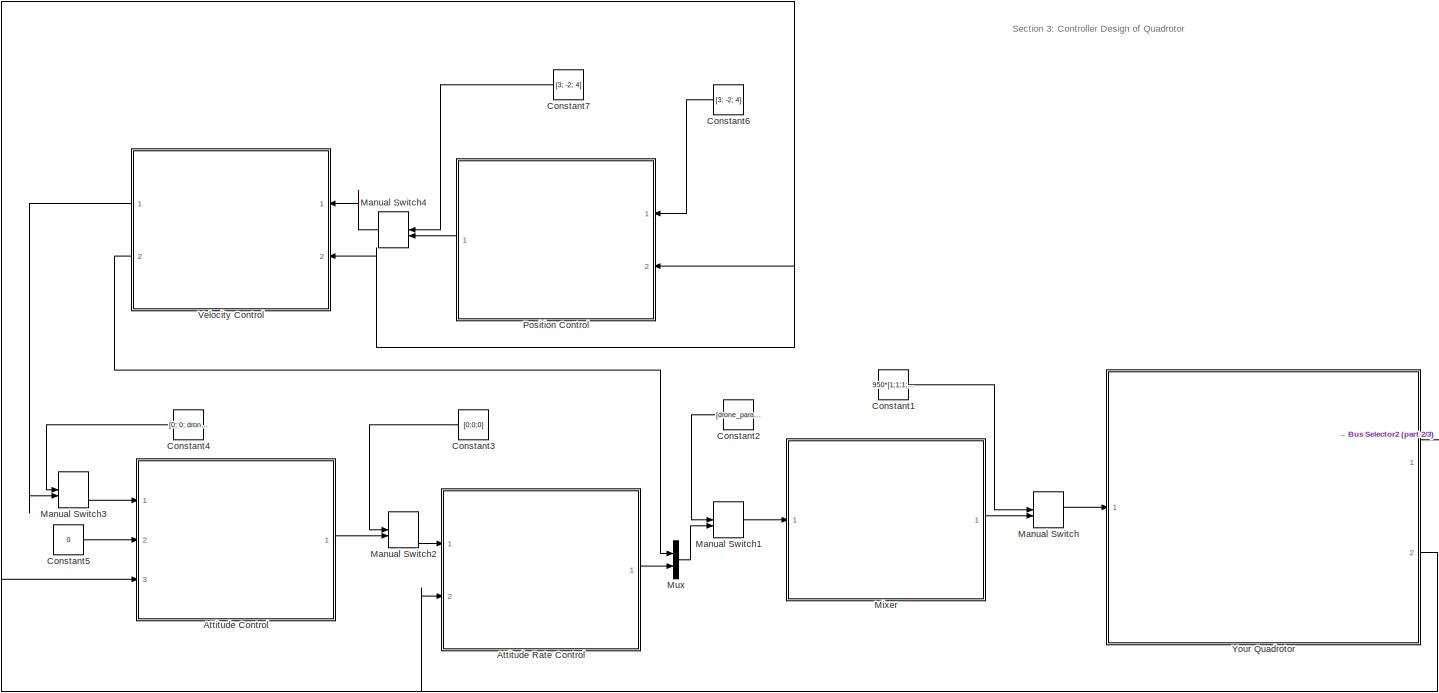
[diagram: root canvas - part 1/3, top left region]
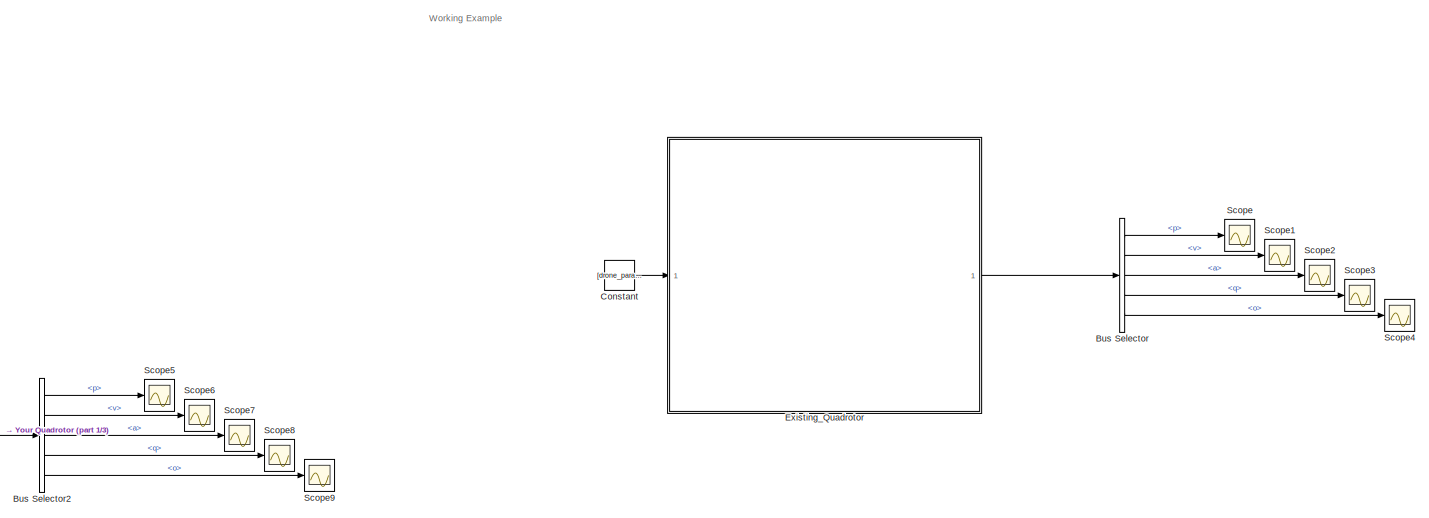
[diagram: root canvas - part 2/3, top right region]
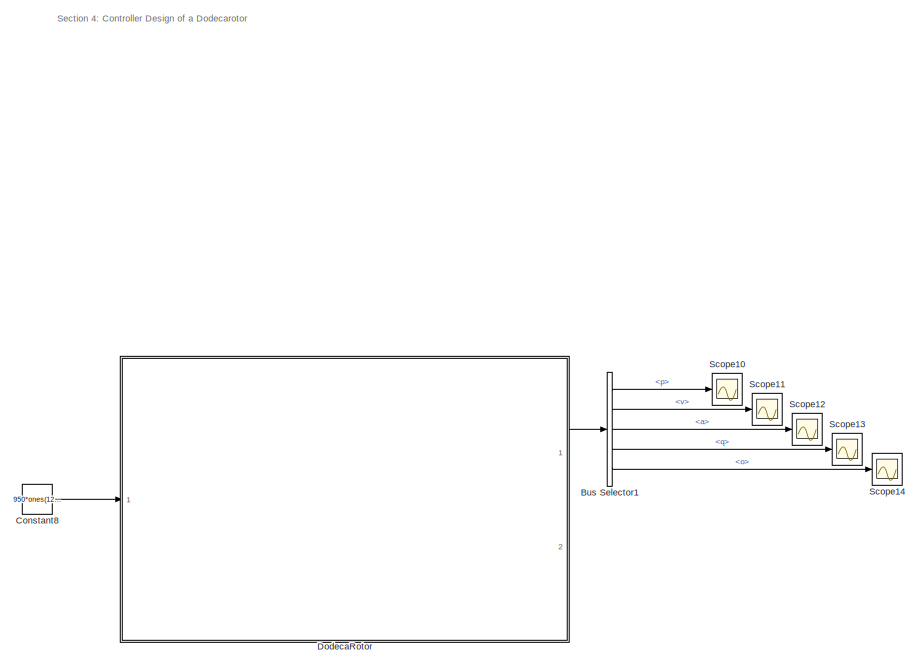
[diagram: root canvas - part 3/3, bottom center region]
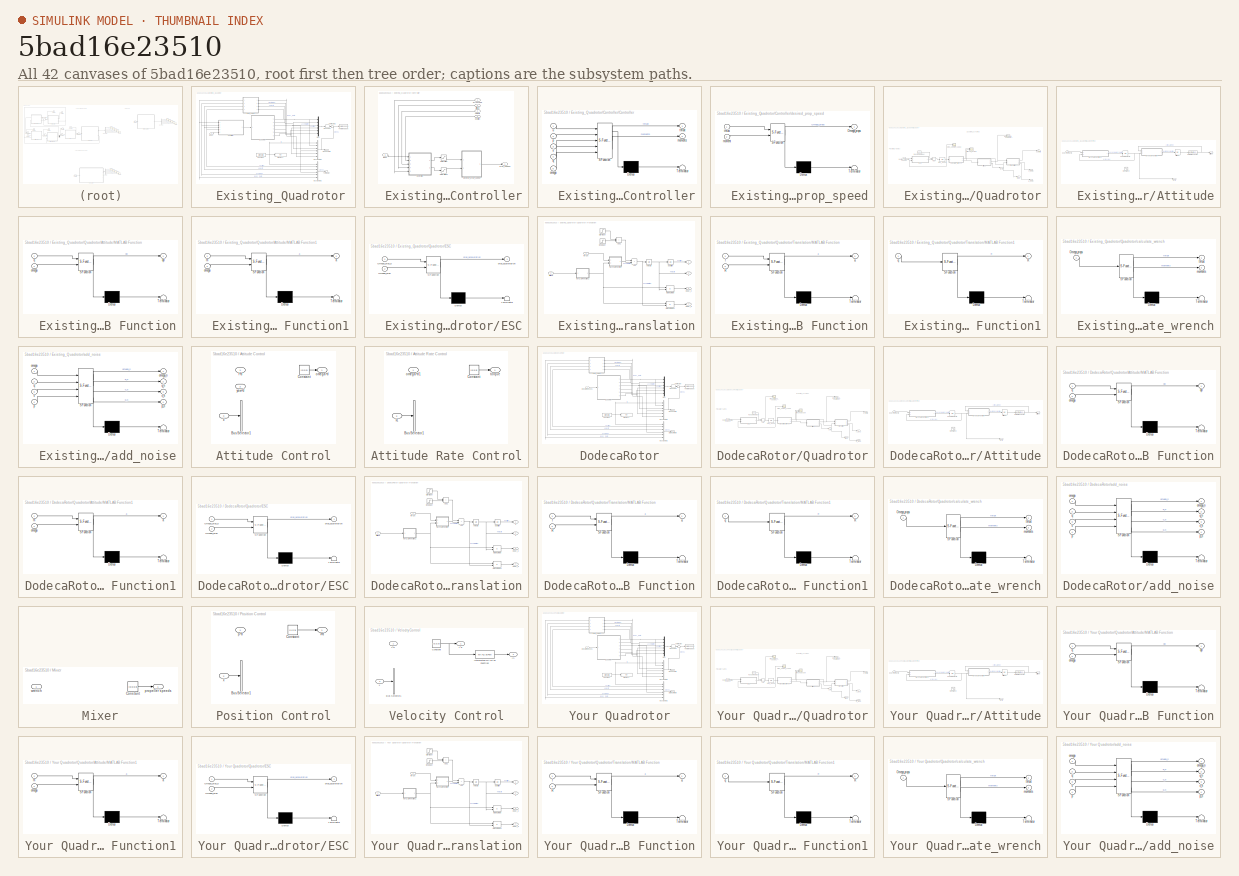
[diagram: thumbnail index - all 42 canvases of the model, root first then tree order]
MODEL slx_5bad16e23510
KIND model
CONFIG AbsTol = auto
CONFIG EnableMultiTasking = off
CONFIG FixedStep = dt
CONFIG MaxStep = auto
CONFIG MinStep = auto
CONFIG RelTol = 1e-3
CONFIG SampleTimeConstraint = Unconstrained
CONFIG Solver = ode4
CONFIG SolverName = ode4
CONFIG StartTime = 0.0
CONFIG StopTime = tsim
BLOCK [SubSystem]   Existing_Quadrotor
  Ports = [1, 1]
  RequestExecContextInheritance = off
BLOCK [BusCreator]   Existing_Quadrotor/Bus Creator1
  DisplayOption = bar
  InheritFromInputs = off
  Inputs = 6
  OutDataTypeStr = Bus: DroneStateBus
  Ports = [6, 1]
BLOCK [BusCreator]   Existing_Quadrotor/Bus Creator4
  DisplayOption = bar
  InheritFromInputs = off
  Inputs = 6
  OutDataTypeStr = Bus: DroneStateBus
  Ports = [6, 1]
BLOCK [Constant]   Existing_Quadrotor/Constant
  Value = DroneID
BLOCK [SubSystem]   Existing_Quadrotor/Controller
  Ports = [5, 1]
  RequestExecContextInheritance = off
BLOCK [SubSystem]   Existing_Quadrotor/Controller/Controller
  ErrorFcn = Stateflow.Translate.translate
  PermitHierarchicalResolution = ExplicitOnly
  Ports = [5, 2]
  RequestExecContextInheritance = off
  SFBlockType = MATLAB Function
  TreatAsAtomicUnit = on
BLOCK [Demux]   Existing_Quadrotor/Controller/Controller/ Demux 
  Outputs = 1
  Ports = [1, 1]
BLOCK [S-Function]   Existing_Quadrotor/Controller/Controller/ SFunction 
  EnableBusSupport = on
  FunctionName = sf_sfun
  Parameters = DroneID,control_type_param,drone_params,g
  PortCounts = [5 3]
  Ports = [5, 3]
  SFcnIsStateOwnerBlock = off
  SFunctionDeploymentMode = off
  Tag = Stateflow S-Function 77
BLOCK [Terminator]   Existing_Quadrotor/Controller/Controller/ Terminator 
BLOCK [Outport]   Existing_Quadrotor/Controller/Controller/moments
  Port = 2
BLOCK [Inport]   Existing_Quadrotor/Controller/Controller/omega
  Port = 5
BLOCK [Inport]   Existing_Quadrotor/Controller/Controller/p
  Port = 2
BLOCK [Inport]   Existing_Quadrotor/Controller/Controller/q
  Port = 4
BLOCK [Outport]   Existing_Quadrotor/Controller/Controller/thrust
BLOCK [Inport]   Existing_Quadrotor/Controller/Controller/u
BLOCK [Inport]   Existing_Quadrotor/Controller/Controller/v
  Port = 3
BLOCK [Saturate]   Existing_Quadrotor/Controller/Saturation
  LowerLimit = 3
  UpperLimit = 16
BLOCK [Saturate]   Existing_Quadrotor/Controller/Saturation1
  LowerLimit = -0.1
  UpperLimit = 0.1
BLOCK [Inport]   Existing_Quadrotor/Controller/attitude
  Port = 2
BLOCK [SubSystem]   Existing_Quadrotor/Controller/desired_prop_speed
  ErrorFcn = Stateflow.Translate.translate
  PermitHierarchicalResolution = ExplicitOnly
  Ports = [2, 1]
  RequestExecContextInheritance = off
  SFBlockType = MATLAB Function
  TreatAsAtomicUnit = on
BLOCK [Demux]   Existing_Quadrotor/Controller/desired_prop_speed/ Demux 
  Outputs = 1
  Ports = [1, 1]
BLOCK [S-Function]   Existing_Quadrotor/Controller/desired_prop_speed/ SFunction 
  EnableBusSupport = on
  FunctionName = sf_sfun
  Parameters = DroneID,drone_params
  PortCounts = [2 2]
  Ports = [2, 2]
  SFcnIsStateOwnerBlock = off
  SFunctionDeploymentMode = off
  Tag = Stateflow S-Function 78
BLOCK [Terminator]   Existing_Quadrotor/Controller/desired_prop_speed/ Terminator 
BLOCK [Outport]   Existing_Quadrotor/Controller/desired_prop_speed/Omega_props
BLOCK [Inport]   Existing_Quadrotor/Controller/desired_prop_speed/moment
  Port = 2
BLOCK [Inport]   Existing_Quadrotor/Controller/desired_prop_speed/thrust
BLOCK [Inport]   Existing_Quadrotor/Controller/gyroscope
BLOCK [Inport]   Existing_Quadrotor/Controller/input
  Port = 5
BLOCK [Inport]   Existing_Quadrotor/Controller/position
  Port = 4
BLOCK [Outport]   Existing_Quadrotor/Controller/prop_speeds
BLOCK [Inport]   Existing_Quadrotor/Controller/velocity
  Port = 3
BLOCK [Display]   Existing_Quadrotor/Display1
  Decimation = 1
  Ports = [1]
BLOCK [Outport]   Existing_Quadrotor/Gound Truth
BLOCK [Mux]   Existing_Quadrotor/Mux
  DisplayOption = bar
  Inputs = 6
  Ports = [6, 1]
BLOCK [SubSystem]   Existing_Quadrotor/Quadrotor
  Ports = [1, 6]
  RequestExecContextInheritance = off
BLOCK [Sum]   Existing_Quadrotor/Quadrotor/Add
  IconShape = rectangular
  Ports = [2, 1]
BLOCK [SubSystem]   Existing_Quadrotor/Quadrotor/Attitude
  Ports = [1, 2]
  RequestExecContextInheritance = off
BLOCK [Integrator]   Existing_Quadrotor/Quadrotor/Attitude/Attitude
  InitialCondition = q0(:,DroneID)
  Ports = [1, 1]
BLOCK [SubSystem]   Existing_Quadrotor/Quadrotor/Attitude/MATLAB Function
  ErrorFcn = Stateflow.Translate.translate
  PermitHierarchicalResolution = ExplicitOnly
  Ports = [2, 1]
  RequestExecContextInheritance = off
  SFBlockType = MATLAB Function
  TreatAsAtomicUnit = on
BLOCK [Demux]   Existing_Quadrotor/Quadrotor/Attitude/MATLAB Function/ Demux 
  Outputs = 1
  Ports = [1, 1]
BLOCK [S-Function]   Existing_Quadrotor/Quadrotor/Attitude/MATLAB Function/ SFunction 
  EnableBusSupport = on
  FunctionName = sf_sfun
  PortCounts = [2 2]
  Ports = [2, 2]
  SFcnIsStateOwnerBlock = off
  SFunctionDeploymentMode = off
  Tag = Stateflow S-Function 79
BLOCK [Terminator]   Existing_Quadrotor/Quadrotor/Attitude/MATLAB Function/ Terminator 
BLOCK [Inport]   Existing_Quadrotor/Quadrotor/Attitude/MATLAB Function/omega
  Port = 2
BLOCK [Inport]   Existing_Quadrotor/Quadrotor/Attitude/MATLAB Function/q
BLOCK [Outport]   Existing_Quadrotor/Quadrotor/Attitude/MATLAB Function/qd
BLOCK [SubSystem]   Existing_Quadrotor/Quadrotor/Attitude/MATLAB Function1
  ErrorFcn = Stateflow.Translate.translate
  PermitHierarchicalResolution = ExplicitOnly
  Ports = [2, 1]
  RequestExecContextInheritance = off
  SFBlockType = MATLAB Function
  TreatAsAtomicUnit = on
BLOCK [Demux]   Existing_Quadrotor/Quadrotor/Attitude/MATLAB Function1/ Demux 
  Outputs = 1
  Ports = [1, 1]
BLOCK [S-Function]   Existing_Quadrotor/Quadrotor/Attitude/MATLAB Function1/ SFunction 
  EnableBusSupport = on
  FunctionName = sf_sfun
  Parameters = DroneID,drone_params
  PortCounts = [2 2]
  Ports = [2, 2]
  SFcnIsStateOwnerBlock = off
  SFunctionDeploymentMode = off
  Tag = Stateflow S-Function 80
BLOCK [Terminator]   Existing_Quadrotor/Quadrotor/Attitude/MATLAB Function1/ Terminator 
BLOCK [Outport]   Existing_Quadrotor/Quadrotor/Attitude/MATLAB Function1/a
BLOCK [Inport]   Existing_Quadrotor/Quadrotor/Attitude/MATLAB Function1/m
BLOCK [Inport]   Existing_Quadrotor/Quadrotor/Attitude/MATLAB Function1/omega
  Port = 2
BLOCK [Reference]   Existing_Quadrotor/Quadrotor/Attitude/Normalize Vector  REF=vrlib/Utilities/Normalize Vector
  Ports = [1, 1]
  SourceBlock = vrlib/Utilities/Normalize Vector
  SourceProductBaseCode = SL
  SourceType = Normalize Vector
BLOCK [Sin]   Existing_Quadrotor/Quadrotor/Attitude/Sine Wave
  Amplitude = [0.5;0.5;0.5]
  Commented = on
  Frequency = [1;0.3;0.6]
  Ports = [0, 1]
  SampleTime = 0
BLOCK [Integrator]   Existing_Quadrotor/Quadrotor/Attitude/angular velocity
  InitialCondition = omega0(:,DroneID)
  Ports = [1, 1]
BLOCK [Outport]   Existing_Quadrotor/Quadrotor/Attitude/attitude
BLOCK [Inport]   Existing_Quadrotor/Quadrotor/Attitude/body moments
BLOCK [Outport]   Existing_Quadrotor/Quadrotor/Attitude/gyro
  Port = 2
BLOCK [SubSystem]   Existing_Quadrotor/Quadrotor/ESC
  ErrorFcn = Stateflow.Translate.translate
  PermitHierarchicalResolution = ExplicitOnly
  Ports = [2, 1]
  RequestExecContextInheritance = off
  SFBlockType = MATLAB Function
  TreatAsAtomicUnit = on
BLOCK [Demux]   Existing_Quadrotor/Quadrotor/ESC/ Demux 
  Outputs = 1
  Ports = [1, 1]
BLOCK [S-Function]   Existing_Quadrotor/Quadrotor/ESC/ SFunction 
  EnableBusSupport = on
  FunctionName = sf_sfun
  Parameters = DroneID,drone_params
  PortCounts = [2 2]
  Ports = [2, 2]
  SFcnIsStateOwnerBlock = off
  SFunctionDeploymentMode = off
  Tag = Stateflow S-Function 81
BLOCK [Terminator]   Existing_Quadrotor/Quadrotor/ESC/ Terminator 
BLOCK [Inport]   Existing_Quadrotor/Quadrotor/ESC/Omega_prop
  Port = 2
BLOCK [Inport]   Existing_Quadrotor/Quadrotor/ESC/Omega_prop_d
BLOCK [Outport]   Existing_Quadrotor/Quadrotor/ESC/prop_acceleration
BLOCK [RandomNumber]   Existing_Quadrotor/Quadrotor/Random Number
  Mean = [0;0;0;0]
  SampleTime = dt
  Seed = [1;2;3;4]
  Variance = [5000;5000;5000;5000]
BLOCK [SubSystem]   Existing_Quadrotor/Quadrotor/Translation
  Ports = [2, 4]
  RequestExecContextInheritance = off
BLOCK [Sum]   Existing_Quadrotor/Quadrotor/Translation/Add
  IconShape = rectangular
  Ports = [2, 1]
BLOCK [Sum]   Existing_Quadrotor/Quadrotor/Translation/Add1
  IconShape = rectangular
  Ports = [2, 1]
BLOCK [Step]   Existing_Quadrotor/Quadrotor/Translation/End Gust
  After = -1*gust_force/drone_params(DroneID).mechanical.m
  Before = [0;0;0]
  SampleTime = 0
  Time = gust_start + gust_duration
BLOCK [SubSystem]   Existing_Quadrotor/Quadrotor/Translation/MATLAB Function
  ErrorFcn = Stateflow.Translate.translate
  PermitHierarchicalResolution = ExplicitOnly
  Ports = [2, 1]
  RequestExecContextInheritance = off
  SFBlockType = MATLAB Function
  TreatAsAtomicUnit = on
BLOCK [Demux]   Existing_Quadrotor/Quadrotor/Translation/MATLAB Function/ Demux 
  Outputs = 1
  Ports = [1, 1]
BLOCK [S-Function]   Existing_Quadrotor/Quadrotor/Translation/MATLAB Function/ SFunction 
  EnableBusSupport = on
  FunctionName = sf_sfun
  Parameters = DroneID,drone_params,g
  PortCounts = [2 2]
  Ports = [2, 2]
  SFcnIsStateOwnerBlock = off
  SFunctionDeploymentMode = off
  Tag = Stateflow S-Function 82
BLOCK [Terminator]   Existing_Quadrotor/Quadrotor/Translation/MATLAB Function/ Terminator 
BLOCK [Inport]   Existing_Quadrotor/Quadrotor/Translation/MATLAB Function/R
  Port = 2
BLOCK [Outport]   Existing_Quadrotor/Quadrotor/Translation/MATLAB Function/a
BLOCK [Inport]   Existing_Quadrotor/Quadrotor/Translation/MATLAB Function/f
BLOCK [SubSystem]   Existing_Quadrotor/Quadrotor/Translation/MATLAB Function1
  ErrorFcn = Stateflow.Translate.translate
  PermitHierarchicalResolution = ExplicitOnly
  Ports = [1, 1]
  RequestExecContextInheritance = off
  SFBlockType = MATLAB Function
  TreatAsAtomicUnit = on
BLOCK [Demux]   Existing_Quadrotor/Quadrotor/Translation/MATLAB Function1/ Demux 
  Outputs = 1
  Ports = [1, 1]
BLOCK [S-Function]   Existing_Quadrotor/Quadrotor/Translation/MATLAB Function1/ SFunction 
  EnableBusSupport = on
  FunctionName = sf_sfun
  PortCounts = [1 2]
  Ports = [1, 2]
  SFcnIsStateOwnerBlock = off
  SFunctionDeploymentMode = off
  Tag = Stateflow S-Function 83
BLOCK [Terminator]   Existing_Quadrotor/Quadrotor/Translation/MATLAB Function1/ Terminator 
BLOCK [Outport]   Existing_Quadrotor/Quadrotor/Translation/MATLAB Function1/R
BLOCK [Inport]   Existing_Quadrotor/Quadrotor/Translation/MATLAB Function1/q
BLOCK [Product]   Existing_Quadrotor/Quadrotor/Translation/Matrix Divide
  Inputs = /*
  Multiplication = Matrix(*)
  Ports = [2, 1]
BLOCK [Product]   Existing_Quadrotor/Quadrotor/Translation/Matrix Divide1
  Inputs = /*
  Multiplication = Matrix(*)
  Ports = [2, 1]
BLOCK [Step]   Existing_Quadrotor/Quadrotor/Translation/Start Gust
  After = gust_force/drone_params(DroneID).mechanical.m
  Before = [0;0;0]
  SampleTime = 0
  Time = gust_start
BLOCK [Inport]   Existing_Quadrotor/Quadrotor/Translation/attitude
BLOCK [Outport]   Existing_Quadrotor/Quadrotor/Translation/body_a
  Port = 4
BLOCK [Outport]   Existing_Quadrotor/Quadrotor/Translation/body_v
  Port = 3
BLOCK [Outport]   Existing_Quadrotor/Quadrotor/Translation/p
BLOCK [Integrator]   Existing_Quadrotor/Quadrotor/Translation/position
  InitialCondition = p0(:,DroneID)
  Ports = [1, 1]
BLOCK [Inport]   Existing_Quadrotor/Quadrotor/Translation/thrust
  Port = 2
BLOCK [Outport]   Existing_Quadrotor/Quadrotor/Translation/v
  Port = 2
BLOCK [Integrator]   Existing_Quadrotor/Quadrotor/Translation/velocity
  InitialCondition = v0(:,DroneID)
  Ports = [1, 1]
BLOCK [Outport]   Existing_Quadrotor/Quadrotor/a_body
  Port = 3
BLOCK [SubSystem]   Existing_Quadrotor/Quadrotor/calculate_wrench
  ErrorFcn = Stateflow.Translate.translate
  PermitHierarchicalResolution = ExplicitOnly
  Ports = [1, 2]
  RequestExecContextInheritance = off
  SFBlockType = MATLAB Function
  TreatAsAtomicUnit = on
BLOCK [Demux]   Existing_Quadrotor/Quadrotor/calculate_wrench/ Demux 
  Outputs = 1
  Ports = [1, 1]
BLOCK [S-Function]   Existing_Quadrotor/Quadrotor/calculate_wrench/ SFunction 
  EnableBusSupport = on
  FunctionName = sf_sfun
  Parameters = DroneID,drone_params
  PortCounts = [1 3]
  Ports = [1, 3]
  SFcnIsStateOwnerBlock = off
  SFunctionDeploymentMode = off
  Tag = Stateflow S-Function 84
BLOCK [Terminator]   Existing_Quadrotor/Quadrotor/calculate_wrench/ Terminator 
BLOCK [Inport]   Existing_Quadrotor/Quadrotor/calculate_wrench/Omega_props
BLOCK [Outport]   Existing_Quadrotor/Quadrotor/calculate_wrench/moments
  Port = 2
BLOCK [Outport]   Existing_Quadrotor/Quadrotor/calculate_wrench/thrust
BLOCK [Inport]   Existing_Quadrotor/Quadrotor/desired_propellor_speeds
BLOCK [Outport]   Existing_Quadrotor/Quadrotor/gyro
  Port = 5
BLOCK [Outport]   Existing_Quadrotor/Quadrotor/p_world
BLOCK [Integrator]   Existing_Quadrotor/Quadrotor/prop_speed
  InitialCondition = drone_params(DroneID).motors.omega0
  LimitOutput = on
  LowerSaturationLimit = drone_params(DroneID).motors.omega_min
  Ports = [1, 1]
  UpperSaturationLimit = drone_params(DroneID).motors.omega_max
BLOCK [Scope]   Existing_Quadrotor/Quadrotor/prop_speed_scope
  Floating = off
  NumInputPorts = 1
  Ports = [1]
  ScopeSpecificationString = Simulink.scopes.TimeScopeBlockCfg('CurrentConfiguration', extmgr.ConfigurationSet(extmgr.Configuration('Core','General UI',true),extmgr.Configuration('Core','Source UI',true),extmgr.Configuration('Sources','WiredSimulink',true,'DataLoggingVariableName','ScopeData3'),extmgr.Configuration('Visuals','Time Domain',true,'SerializedDisplays',{struct('MinYLimReal','306.25','MaxYLimReal','1243.75','YLabel...<+1482ch>
BLOCK [Outport]   Existing_Quadrotor/Quadrotor/thrust
  Port = 6
BLOCK [Outport]   Existing_Quadrotor/Quadrotor/v_body
  Port = 2
BLOCK [Outport]   Existing_Quadrotor/Quadrotor/world2drone_quaternion
  Port = 4
BLOCK [Scope]   Existing_Quadrotor/Quadrotor/wrench_scope
  Floating = off
  NumInputPorts = 2
  Ports = [2]
  ScopeSpecificationString = Simulink.scopes.TimeScopeBlockCfg('CurrentConfiguration', extmgr.ConfigurationSet(extmgr.Configuration('Core','General UI',true),extmgr.Configuration('Core','Source UI',true),extmgr.Configuration('Sources','WiredSimulink',true,'DataLoggingVariableName','ScopeData4'),extmgr.Configuration('Visuals','Time Domain',true,'SerializedDisplays',{struct('MinYLimReal','-1.81861','MaxYLimReal','15.57383','YLa...<+1548ch>  <repeated x3 — deduplicated; at blocks: wrench_scope>
BLOCK [Reshape]   Existing_Quadrotor/Reshape
  Ports = [1, 1]
BLOCK [Terminator]   Existing_Quadrotor/Terminator
BLOCK [Terminator]   Existing_Quadrotor/Terminator1
BLOCK [ToWorkspace]   Existing_Quadrotor/To Workspace
  FixptAsFi = on
  MaxDataPoints = inf
  Ports = [1]
  SampleTime = -1
  SaveFormat = Timeseries
  VariableName = Drone1
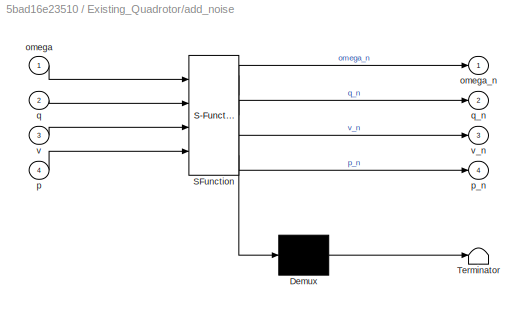
BLOCK [SubSystem]   Existing_Quadrotor/add_noise
  ErrorFcn = Stateflow.Translate.translate
  PermitHierarchicalResolution = ExplicitOnly
  Ports = [4, 4]
  RequestExecContextInheritance = off
  SFBlockType = MATLAB Function
  TreatAsAtomicUnit = on
BLOCK [Demux]   Existing_Quadrotor/add_noise/ Demux 
  Outputs = 1
  Ports = [1, 1]
BLOCK [S-Function]   Existing_Quadrotor/add_noise/ SFunction 
  EnableBusSupport = on
  FunctionName = sf_sfun
  Parameters = DroneID,drone_params
  PortCounts = [4 5]
  Ports = [4, 5]
  SFcnIsStateOwnerBlock = off
  SFunctionDeploymentMode = off
  Tag = Stateflow S-Function 85
BLOCK [Terminator]   Existing_Quadrotor/add_noise/ Terminator 
BLOCK [Inport]   Existing_Quadrotor/add_noise/omega
BLOCK [Outport]   Existing_Quadrotor/add_noise/omega_n
BLOCK [Inport]   Existing_Quadrotor/add_noise/p
  Port = 4
BLOCK [Outport]   Existing_Quadrotor/add_noise/p_n
  Port = 4
BLOCK [Inport]   Existing_Quadrotor/add_noise/q
  Port = 2
BLOCK [Outport]   Existing_Quadrotor/add_noise/q_n
  Port = 2
BLOCK [Inport]   Existing_Quadrotor/add_noise/v
  Port = 3
BLOCK [Outport]   Existing_Quadrotor/add_noise/v_n
  Port = 3
BLOCK [Inport]   Existing_Quadrotor/input
BLOCK [SubSystem] Attitude Control
  Ports = [3, 1]
  RequestExecContextInheritance = off
BLOCK [BusSelector] Attitude Control/Bus Selector1
  OutputSignals = p,v,a,q,o
  Ports = [1, 5]
BLOCK [Constant] Attitude Control/Constant
  Value = [0;0;0]
BLOCK [Inport] Attitude Control/f^d
BLOCK [Outport] Attitude Control/omega^d
BLOCK [Inport] Attitude Control/x
  Port = 3
BLOCK [Inport] Attitude Control/yaw^d
  Port = 2
BLOCK [SubSystem] Attitude Rate Control
  Ports = [2, 1]
  RequestExecContextInheritance = off
BLOCK [BusSelector] Attitude Rate Control/Bus Selector1
  OutputSignals = p,v,a,q,o
  Ports = [1, 5]
BLOCK [Constant] Attitude Rate Control/Constant
  Value = [0;0;0]
BLOCK [Inport] Attitude Rate Control/omega^d1
BLOCK [Outport] Attitude Rate Control/torque
BLOCK [Inport] Attitude Rate Control/x1
  Port = 2
BLOCK [BusSelector] Bus Selector
  OutputSignals = p,v,a,q,o
  Ports = [1, 5]
BLOCK [BusSelector] Bus Selector1
  OutputSignals = p,v,a,q,o
  Ports = [1, 5]
BLOCK [BusSelector] Bus Selector2
  OutputSignals = p,v,a,q,o
  Ports = [1, 5]
BLOCK [Constant] Constant
  Value = [drone_params(1).mechanical.m*g;4;3;-1]
BLOCK [Constant] Constant1
  Value = 950*[1;1;1;1]
BLOCK [Constant] Constant2
  Value = [drone_params(2).mechanical.m*g;0;0;0]
BLOCK [Constant] Constant3
  Value = [0;0;0]
BLOCK [Constant] Constant4
  Value = [0; 0; drone_params(2).mechanical.m*g]
BLOCK [Constant] Constant5
  Value = 0
BLOCK [Constant] Constant6
  Value = [3; -2; 4]
BLOCK [Constant] Constant7
  Value = [3; -2; 4]
BLOCK [Constant] Constant8
  Value = 950*ones(12,1)
BLOCK [SubSystem] DodecaRotor
  Ports = [1, 2]
  RequestExecContextInheritance = off
BLOCK [BusCreator] DodecaRotor/Bus Creator1
  DisplayOption = bar
  InheritFromInputs = off
  Inputs = 6
  OutDataTypeStr = Bus: DroneStateBus
  Ports = [6, 1]
BLOCK [BusCreator] DodecaRotor/Bus Creator4
  DisplayOption = bar
  InheritFromInputs = off
  Inputs = 6
  OutDataTypeStr = Bus: DroneStateBus
  Ports = [6, 1]
BLOCK [Constant] DodecaRotor/Constant
  Value = DroneID
BLOCK [Display] DodecaRotor/Display1
  Decimation = 1
  Ports = [1]
BLOCK [Outport] DodecaRotor/Gound Truth
BLOCK [Mux] DodecaRotor/Mux
  DisplayOption = bar
  Inputs = 6
  Ports = [6, 1]
BLOCK [SubSystem] DodecaRotor/Quadrotor
  Ports = [1, 6]
  RequestExecContextInheritance = off
BLOCK [Sum] DodecaRotor/Quadrotor/Add
  IconShape = rectangular
  Ports = [2, 1]
BLOCK [SubSystem] DodecaRotor/Quadrotor/Attitude
  Ports = [1, 2]
  RequestExecContextInheritance = off
BLOCK [Integrator] DodecaRotor/Quadrotor/Attitude/Attitude
  InitialCondition = q0(:,DroneID)
  Ports = [1, 1]
BLOCK [SubSystem] DodecaRotor/Quadrotor/Attitude/MATLAB Function
  ErrorFcn = Stateflow.Translate.translate
  PermitHierarchicalResolution = ExplicitOnly
  Ports = [2, 1]
  RequestExecContextInheritance = off
  SFBlockType = MATLAB Function
  TreatAsAtomicUnit = on
BLOCK [Demux] DodecaRotor/Quadrotor/Attitude/MATLAB Function/ Demux 
  Outputs = 1
  Ports = [1, 1]
BLOCK [S-Function] DodecaRotor/Quadrotor/Attitude/MATLAB Function/ SFunction 
  EnableBusSupport = on
  FunctionName = sf_sfun
  PortCounts = [2 2]
  Ports = [2, 2]
  SFcnIsStateOwnerBlock = off
  SFunctionDeploymentMode = off
  Tag = Stateflow S-Function 1
BLOCK [Terminator] DodecaRotor/Quadrotor/Attitude/MATLAB Function/ Terminator 
BLOCK [Inport] DodecaRotor/Quadrotor/Attitude/MATLAB Function/omega
  Port = 2
BLOCK [Inport] DodecaRotor/Quadrotor/Attitude/MATLAB Function/q
BLOCK [Outport] DodecaRotor/Quadrotor/Attitude/MATLAB Function/qd
BLOCK [SubSystem] DodecaRotor/Quadrotor/Attitude/MATLAB Function1
  ErrorFcn = Stateflow.Translate.translate
  PermitHierarchicalResolution = ExplicitOnly
  Ports = [2, 1]
  RequestExecContextInheritance = off
  SFBlockType = MATLAB Function
  TreatAsAtomicUnit = on
BLOCK [Demux] DodecaRotor/Quadrotor/Attitude/MATLAB Function1/ Demux 
  Outputs = 1
  Ports = [1, 1]
BLOCK [S-Function] DodecaRotor/Quadrotor/Attitude/MATLAB Function1/ SFunction 
  EnableBusSupport = on
  FunctionName = sf_sfun
  Parameters = DroneID,drone_params
  PortCounts = [2 2]
  Ports = [2, 2]
  SFcnIsStateOwnerBlock = off
  SFunctionDeploymentMode = off
  Tag = Stateflow S-Function 2
BLOCK [Terminator] DodecaRotor/Quadrotor/Attitude/MATLAB Function1/ Terminator 
BLOCK [Outport] DodecaRotor/Quadrotor/Attitude/MATLAB Function1/a
BLOCK [Inport] DodecaRotor/Quadrotor/Attitude/MATLAB Function1/m
BLOCK [Inport] DodecaRotor/Quadrotor/Attitude/MATLAB Function1/omega
  Port = 2
BLOCK [Reference] DodecaRotor/Quadrotor/Attitude/Normalize Vector  REF=vrlib/Utilities/Normalize Vector
  Ports = [1, 1]
  SourceBlock = vrlib/Utilities/Normalize Vector
  SourceProductBaseCode = SL
  SourceType = Normalize Vector
BLOCK [Sin] DodecaRotor/Quadrotor/Attitude/Sine Wave
  Amplitude = [0.5;0.5;0.5]
  Commented = on
  Frequency = [1;0.3;0.6]
  Ports = [0, 1]
  SampleTime = 0
BLOCK [Integrator] DodecaRotor/Quadrotor/Attitude/angular velocity
  InitialCondition = omega0(:,DroneID)
  Ports = [1, 1]
BLOCK [Outport] DodecaRotor/Quadrotor/Attitude/attitude
BLOCK [Inport] DodecaRotor/Quadrotor/Attitude/body moments
BLOCK [Outport] DodecaRotor/Quadrotor/Attitude/gyro
  Port = 2
BLOCK [SubSystem] DodecaRotor/Quadrotor/ESC
  ErrorFcn = Stateflow.Translate.translate
  PermitHierarchicalResolution = ExplicitOnly
  Ports = [2, 1]
  RequestExecContextInheritance = off
  SFBlockType = MATLAB Function
  TreatAsAtomicUnit = on
BLOCK [Demux] DodecaRotor/Quadrotor/ESC/ Demux 
  Outputs = 1
  Ports = [1, 1]
BLOCK [S-Function] DodecaRotor/Quadrotor/ESC/ SFunction 
  EnableBusSupport = on
  FunctionName = sf_sfun
  Parameters = DroneID,drone_params
  PortCounts = [2 2]
  Ports = [2, 2]
  SFcnIsStateOwnerBlock = off
  SFunctionDeploymentMode = off
  Tag = Stateflow S-Function 10
BLOCK [Terminator] DodecaRotor/Quadrotor/ESC/ Terminator 
BLOCK [Inport] DodecaRotor/Quadrotor/ESC/Omega_prop
  Port = 2
BLOCK [Inport] DodecaRotor/Quadrotor/ESC/Omega_prop_d
BLOCK [Outport] DodecaRotor/Quadrotor/ESC/prop_acceleration
BLOCK [RandomNumber] DodecaRotor/Quadrotor/Random Number
  Mean = 0*ones(12,1)
  SampleTime = dt
  Seed = [1;2;3;4;5;6;7;8;9;10;11;12]
  Variance = 5000*ones(12,1)
BLOCK [SubSystem] DodecaRotor/Quadrotor/Translation
  Ports = [2, 4]
  RequestExecContextInheritance = off
BLOCK [Sum] DodecaRotor/Quadrotor/Translation/Add
  IconShape = rectangular
  Ports = [2, 1]
BLOCK [Sum] DodecaRotor/Quadrotor/Translation/Add1
  IconShape = rectangular
  Ports = [2, 1]
BLOCK [Step] DodecaRotor/Quadrotor/Translation/End Gust
  After = -1*gust_force/drone_params(DroneID).mechanical.m
  Before = [0;0;0]
  SampleTime = 0
  Time = gust_start + gust_duration
BLOCK [SubSystem] DodecaRotor/Quadrotor/Translation/MATLAB Function
  ErrorFcn = Stateflow.Translate.translate
  PermitHierarchicalResolution = ExplicitOnly
  Ports = [2, 1]
  RequestExecContextInheritance = off
  SFBlockType = MATLAB Function
  TreatAsAtomicUnit = on
BLOCK [Demux] DodecaRotor/Quadrotor/Translation/MATLAB Function/ Demux 
  Outputs = 1
  Ports = [1, 1]
BLOCK [S-Function] DodecaRotor/Quadrotor/Translation/MATLAB Function/ SFunction 
  EnableBusSupport = on
  FunctionName = sf_sfun
  Parameters = DroneID,drone_params,g
  PortCounts = [2 2]
  Ports = [2, 2]
  SFcnIsStateOwnerBlock = off
  SFunctionDeploymentMode = off
  Tag = Stateflow S-Function 11
BLOCK [Terminator] DodecaRotor/Quadrotor/Translation/MATLAB Function/ Terminator 
BLOCK [Inport] DodecaRotor/Quadrotor/Translation/MATLAB Function/R
  Port = 2
BLOCK [Outport] DodecaRotor/Quadrotor/Translation/MATLAB Function/a
BLOCK [Inport] DodecaRotor/Quadrotor/Translation/MATLAB Function/f
BLOCK [SubSystem] DodecaRotor/Quadrotor/Translation/MATLAB Function1
  ErrorFcn = Stateflow.Translate.translate
  PermitHierarchicalResolution = ExplicitOnly
  Ports = [1, 1]
  RequestExecContextInheritance = off
  SFBlockType = MATLAB Function
  TreatAsAtomicUnit = on
BLOCK [Demux] DodecaRotor/Quadrotor/Translation/MATLAB Function1/ Demux 
  Outputs = 1
  Ports = [1, 1]
BLOCK [S-Function] DodecaRotor/Quadrotor/Translation/MATLAB Function1/ SFunction 
  EnableBusSupport = on
  FunctionName = sf_sfun
  PortCounts = [1 2]
  Ports = [1, 2]
  SFcnIsStateOwnerBlock = off
  SFunctionDeploymentMode = off
  Tag = Stateflow S-Function 12
BLOCK [Terminator] DodecaRotor/Quadrotor/Translation/MATLAB Function1/ Terminator 
BLOCK [Outport] DodecaRotor/Quadrotor/Translation/MATLAB Function1/R
BLOCK [Inport] DodecaRotor/Quadrotor/Translation/MATLAB Function1/q
BLOCK [Product] DodecaRotor/Quadrotor/Translation/Matrix Divide
  Inputs = /*
  Multiplication = Matrix(*)
  Ports = [2, 1]
BLOCK [Product] DodecaRotor/Quadrotor/Translation/Matrix Divide1
  Inputs = /*
  Multiplication = Matrix(*)
  Ports = [2, 1]
BLOCK [Step] DodecaRotor/Quadrotor/Translation/Start Gust
  After = gust_force/drone_params(DroneID).mechanical.m
  Before = [0;0;0]
  SampleTime = 0
  Time = gust_start
BLOCK [Inport] DodecaRotor/Quadrotor/Translation/attitude
BLOCK [Outport] DodecaRotor/Quadrotor/Translation/body_a
  Port = 4
BLOCK [Outport] DodecaRotor/Quadrotor/Translation/body_v
  Port = 3
BLOCK [Outport] DodecaRotor/Quadrotor/Translation/p
BLOCK [Integrator] DodecaRotor/Quadrotor/Translation/position
  InitialCondition = p0(:,DroneID)
  Ports = [1, 1]
BLOCK [Inport] DodecaRotor/Quadrotor/Translation/thrust
  Port = 2
BLOCK [Outport] DodecaRotor/Quadrotor/Translation/v
  Port = 2
BLOCK [Integrator] DodecaRotor/Quadrotor/Translation/velocity
  InitialCondition = v0(:,DroneID)
  Ports = [1, 1]
BLOCK [Outport] DodecaRotor/Quadrotor/a_body
  Port = 3
BLOCK [SubSystem] DodecaRotor/Quadrotor/calculate_wrench
  ErrorFcn = Stateflow.Translate.translate
  PermitHierarchicalResolution = ExplicitOnly
  Ports = [1, 2]
  RequestExecContextInheritance = off
  SFBlockType = MATLAB Function
  TreatAsAtomicUnit = on
BLOCK [Demux] DodecaRotor/Quadrotor/calculate_wrench/ Demux 
  Outputs = 1
  Ports = [1, 1]
BLOCK [S-Function] DodecaRotor/Quadrotor/calculate_wrench/ SFunction 
  EnableBusSupport = on
  FunctionName = sf_sfun
  Parameters = DroneID,drone_params
  PortCounts = [1 3]
  Ports = [1, 3]
  SFcnIsStateOwnerBlock = off
  SFunctionDeploymentMode = off
  Tag = Stateflow S-Function 13
BLOCK [Terminator] DodecaRotor/Quadrotor/calculate_wrench/ Terminator 
BLOCK [Inport] DodecaRotor/Quadrotor/calculate_wrench/Omega_props
BLOCK [Outport] DodecaRotor/Quadrotor/calculate_wrench/moments
  Port = 2
BLOCK [Outport] DodecaRotor/Quadrotor/calculate_wrench/thrust
BLOCK [Inport] DodecaRotor/Quadrotor/desired_propellor_speeds
BLOCK [Outport] DodecaRotor/Quadrotor/gyro
  Port = 5
BLOCK [Outport] DodecaRotor/Quadrotor/p_world
BLOCK [Integrator] DodecaRotor/Quadrotor/prop_speed
  InitialCondition = 950*ones(12,1)
  LimitOutput = on
  LowerSaturationLimit = drone_params(DroneID).motors.omega_min
  Ports = [1, 1]
  UpperSaturationLimit = drone_params(DroneID).motors.omega_max
BLOCK [Scope] DodecaRotor/Quadrotor/prop_speed_scope
  Floating = off
  NumInputPorts = 1
  Ports = [1]
  ScopeSpecificationString = Simulink.scopes.TimeScopeBlockCfg('CurrentConfiguration', extmgr.ConfigurationSet(extmgr.Configuration('Core','General UI',true),extmgr.Configuration('Core','Source UI',true),extmgr.Configuration('Sources','WiredSimulink',true,'DataLoggingVariableName','ScopeData3'),extmgr.Configuration('Visuals','Time Domain',true,'SerializedDisplays',{struct('MinYLimReal','787.14563','MaxYLimReal','912.53937','Y...<+1502ch>
BLOCK [Scope] DodecaRotor/Quadrotor/prop_speed_scope1
  Floating = off
  NumInputPorts = 1
  Ports = [1]
  ScopeSpecificationString = Simulink.scopes.TimeScopeBlockCfg('CurrentConfiguration', extmgr.ConfigurationSet(extmgr.Configuration('Core','General UI',true),extmgr.Configuration('Core','Source UI',true),extmgr.Configuration('Sources','WiredSimulink',true,'DataLoggingVariableName','ScopeData6'),extmgr.Configuration('Visuals','Time Domain',true,'SerializedDisplays',{struct('MinYLimReal','-2811.66228','MaxYLimReal','316.61006',...<+1480ch>
BLOCK [Outport] DodecaRotor/Quadrotor/thrust
  Port = 6
BLOCK [Outport] DodecaRotor/Quadrotor/v_body
  Port = 2
BLOCK [Outport] DodecaRotor/Quadrotor/world2drone_quaternion
  Port = 4
BLOCK [Scope] DodecaRotor/Quadrotor/wrench_scope
  Floating = off
  NumInputPorts = 2
  Ports = [2]
BLOCK [Reshape] DodecaRotor/Reshape
  Ports = [1, 1]
BLOCK [Outport] DodecaRotor/State Estimate
  Port = 2
BLOCK [Terminator] DodecaRotor/Terminator
BLOCK [ToWorkspace] DodecaRotor/To Workspace
  FixptAsFi = on
  MaxDataPoints = inf
  Ports = [1]
  SampleTime = -1
  SaveFormat = Timeseries
  VariableName = Drone3
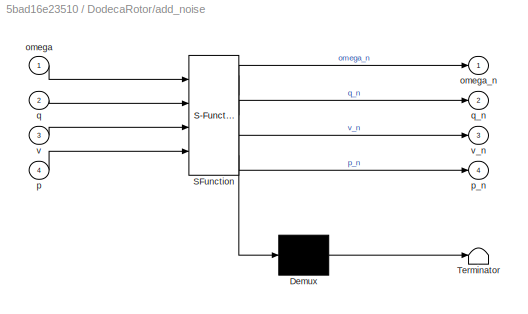
BLOCK [SubSystem] DodecaRotor/add_noise
  ErrorFcn = Stateflow.Translate.translate
  PermitHierarchicalResolution = ExplicitOnly
  Ports = [4, 4]
  RequestExecContextInheritance = off
  SFBlockType = MATLAB Function
  TreatAsAtomicUnit = on
BLOCK [Demux] DodecaRotor/add_noise/ Demux 
  Outputs = 1
  Ports = [1, 1]
BLOCK [S-Function] DodecaRotor/add_noise/ SFunction 
  EnableBusSupport = on
  FunctionName = sf_sfun
  Parameters = DroneID,drone_params
  PortCounts = [4 5]
  Ports = [4, 5]
  SFcnIsStateOwnerBlock = off
  SFunctionDeploymentMode = off
  Tag = Stateflow S-Function 14
BLOCK [Terminator] DodecaRotor/add_noise/ Terminator 
BLOCK [Inport] DodecaRotor/add_noise/omega
BLOCK [Outport] DodecaRotor/add_noise/omega_n
BLOCK [Inport] DodecaRotor/add_noise/p
  Port = 4
BLOCK [Outport] DodecaRotor/add_noise/p_n
  Port = 4
BLOCK [Inport] DodecaRotor/add_noise/q
  Port = 2
BLOCK [Outport] DodecaRotor/add_noise/q_n
  Port = 2
BLOCK [Inport] DodecaRotor/add_noise/v
  Port = 3
BLOCK [Outport] DodecaRotor/add_noise/v_n
  Port = 3
BLOCK [Inport] DodecaRotor/propeller speeds
BLOCK [ManualSwitch] Manual Switch
BLOCK [ManualSwitch] Manual Switch1
BLOCK [ManualSwitch] Manual Switch2
BLOCK [ManualSwitch] Manual Switch3
BLOCK [ManualSwitch] Manual Switch4
BLOCK [SubSystem] Mixer
  Ports = [1, 1]
  RequestExecContextInheritance = off
BLOCK [Constant] Mixer/Constant
  Value = [0;0;0;0]
BLOCK [Outport] Mixer/propeller speeds
BLOCK [Inport] Mixer/wrench
BLOCK [Mux] Mux
  DisplayOption = bar
  Inputs = 2
  Ports = [2, 1]
BLOCK [SubSystem] Position Control
  Ports = [2, 1]
  RequestExecContextInheritance = off
BLOCK [BusSelector] Position Control/Bus Selector1
  OutputSignals = p,v,a,q,o
  Ports = [1, 5]
BLOCK [Constant] Position Control/Constant
  Value = [1;2;3]
BLOCK [Inport] Position Control/p^d
BLOCK [Outport] Position Control/v^d
BLOCK [Inport] Position Control/x
  Port = 2
BLOCK [Scope] Scope
  Floating = off
  NumInputPorts = 1
  Ports = [1]
  ScopeSpecificationString = Simulink.scopes.TimeScopeBlockCfg('CurrentConfiguration', extmgr.ConfigurationSet(extmgr.Configuration('Core','General UI',true),extmgr.Configuration('Core','Source UI',true),extmgr.Configuration('Sources','WiredSimulink',true,'DataLoggingVariableName','ScopeData1'),extmgr.Configuration('Visuals','Time Domain',true,'SerializedDisplays',{struct('MinYLimReal','-1.4615','MaxYLimReal','13.15354','YLab...<+1411ch>
BLOCK [Scope] Scope1
  Floating = off
  NumInputPorts = 1
  Ports = [1]
  ScopeSpecificationString = Simulink.scopes.TimeScopeBlockCfg('CurrentConfiguration', extmgr.ConfigurationSet(extmgr.Configuration('Core','General UI',true),extmgr.Configuration('Core','Source UI',true),extmgr.Configuration('Sources','WiredSimulink',true,'DataLoggingVariableName','ScopeData2'),extmgr.Configuration('Visuals','Time Domain',true,'SerializedDisplays',{struct('MinYLimReal','-4.34101','MaxYLimReal','8.72862','YLab...<+1409ch>
BLOCK [Scope] Scope10
  Floating = off
  NumInputPorts = 1
  Ports = [1]
  ScopeSpecificationString = Simulink.scopes.TimeScopeBlockCfg('CurrentConfiguration', extmgr.ConfigurationSet(extmgr.Configuration('Core','General UI',true),extmgr.Configuration('Core','Source UI',true),extmgr.Configuration('Sources','WiredSimulink',true,'DataLoggingVariableName','ScopeData7'),extmgr.Configuration('Visuals','Time Domain',true,'SerializedDisplays',{struct('MinYLimReal','-235.3312','MaxYLimReal','1308.31832','...<+1425ch>
BLOCK [Scope] Scope11
  Floating = off
  NumInputPorts = 1
  Ports = [1]
  ScopeSpecificationString = Simulink.scopes.TimeScopeBlockCfg('CurrentConfiguration', extmgr.ConfigurationSet(extmgr.Configuration('Core','General UI',true),extmgr.Configuration('Core','Source UI',true),extmgr.Configuration('Sources','WiredSimulink',true,'DataLoggingVariableName','ScopeData8'),extmgr.Configuration('Visuals','Time Domain',true,'SerializedDisplays',{struct('MinYLimReal','-151.36979','MaxYLimReal','134.65577','...<+1423ch>
BLOCK [Scope] Scope12
  Floating = off
  NumInputPorts = 1
  Ports = [1]
  ScopeSpecificationString = Simulink.scopes.TimeScopeBlockCfg('CurrentConfiguration', extmgr.ConfigurationSet(extmgr.Configuration('Core','General UI',true),extmgr.Configuration('Core','Source UI',true),extmgr.Configuration('Sources','WiredSimulink',true,'DataLoggingVariableName','ScopeData9'),extmgr.Configuration('Visuals','Time Domain',true,'SerializedDisplays',{struct('MinYLimReal','-1.32174','MaxYLimReal','6.78272','YLab...<+1409ch>
BLOCK [Scope] Scope13
  Floating = off
  NumInputPorts = 1
  Ports = [1]
  ScopeSpecificationString = Simulink.scopes.TimeScopeBlockCfg('CurrentConfiguration', extmgr.ConfigurationSet(extmgr.Configuration('Core','General UI',true),extmgr.Configuration('Core','Source UI',true),extmgr.Configuration('Sources','WiredSimulink',true,'DataLoggingVariableName','ScopeData10'),extmgr.Configuration('Visuals','Time Domain',true,'SerializedDisplays',{struct('MinYLimReal','-1.24865','MaxYLimReal','1.24985','YLa...<+1418ch>
BLOCK [Scope] Scope14
  Floating = off
  NumInputPorts = 1
  Ports = [1]
  ScopeSpecificationString = Simulink.scopes.TimeScopeBlockCfg('CurrentConfiguration', extmgr.ConfigurationSet(extmgr.Configuration('Core','General UI',true),extmgr.Configuration('Core','Source UI',true),extmgr.Configuration('Sources','WiredSimulink',true,'DataLoggingVariableName','ScopeData11'),extmgr.Configuration('Visuals','Time Domain',true,'SerializedDisplays',{struct('MinYLimReal','-0.95808','MaxYLimReal','0.67083','YLa...<+1410ch>
BLOCK [Scope] Scope2
  Floating = off
  NumInputPorts = 1
  Ports = [1]
  ScopeSpecificationString = Simulink.scopes.TimeScopeBlockCfg('CurrentConfiguration', extmgr.ConfigurationSet(extmgr.Configuration('Core','General UI',true),extmgr.Configuration('Core','Source UI',true),extmgr.Configuration('Sources','WiredSimulink',true,'DataLoggingVariableName','ScopeData3'),extmgr.Configuration('Visuals','Time Domain',true,'SerializedDisplays',{struct('MinYLimReal','-7.35323','MaxYLimReal','7.78671','YLab...<+1409ch>
BLOCK [Scope] Scope3
  Floating = off
  NumInputPorts = 1
  Ports = [1]
  ScopeSpecificationString = Simulink.scopes.TimeScopeBlockCfg('CurrentConfiguration', extmgr.ConfigurationSet(extmgr.Configuration('Core','General UI',true),extmgr.Configuration('Core','Source UI',true),extmgr.Configuration('Sources','WiredSimulink',true,'DataLoggingVariableName','ScopeData4'),extmgr.Configuration('Visuals','Time Domain',true,'SerializedDisplays',{struct('MinYLimReal','-0.77927','MaxYLimReal','1.1977','YLabe...<+1413ch>
BLOCK [Scope] Scope4
  Floating = off
  NumInputPorts = 1
  Ports = [1]
  ScopeSpecificationString = Simulink.scopes.TimeScopeBlockCfg('CurrentConfiguration', extmgr.ConfigurationSet(extmgr.Configuration('Core','General UI',true),extmgr.Configuration('Core','Source UI',true),extmgr.Configuration('Sources','WiredSimulink',true,'DataLoggingVariableName','ScopeData5'),extmgr.Configuration('Visuals','Time Domain',true,'SerializedDisplays',{struct('MinYLimReal','-3.13324','MaxYLimReal','2.55131','YLab...<+1409ch>
BLOCK [Scope] Scope5
  Floating = off
  NumInputPorts = 1
  Ports = [1]
  ScopeSpecificationString = Simulink.scopes.TimeScopeBlockCfg('CurrentConfiguration', extmgr.ConfigurationSet(extmgr.Configuration('Core','General UI',true),extmgr.Configuration('Core','Source UI',true),extmgr.Configuration('Sources','WiredSimulink',true,'DataLoggingVariableName','ScopeData1'),extmgr.Configuration('Visuals','Time Domain',true,'SerializedDisplays',{struct('MinYLimReal','-875.8248','MaxYLimReal','434.22016','Y...<+1419ch>
BLOCK [Scope] Scope6
  Floating = off
  NumInputPorts = 1
  Ports = [1]
  ScopeSpecificationString = Simulink.scopes.TimeScopeBlockCfg('CurrentConfiguration', extmgr.ConfigurationSet(extmgr.Configuration('Core','General UI',true),extmgr.Configuration('Core','Source UI',true),extmgr.Configuration('Sources','WiredSimulink',true,'DataLoggingVariableName','ScopeData2'),extmgr.Configuration('Visuals','Time Domain',true,'SerializedDisplays',{struct('MinYLimReal','-123.81711','MaxYLimReal','141.55899','...<+1423ch>
BLOCK [Scope] Scope7
  Floating = off
  NumInputPorts = 1
  Ports = [1]
  ScopeSpecificationString = Simulink.scopes.TimeScopeBlockCfg('CurrentConfiguration', extmgr.ConfigurationSet(extmgr.Configuration('Core','General UI',true),extmgr.Configuration('Core','Source UI',true),extmgr.Configuration('Sources','WiredSimulink',true,'DataLoggingVariableName','ScopeData3'),extmgr.Configuration('Visuals','Time Domain',true,'SerializedDisplays',{struct('MinYLimReal','-13.21555','MaxYLimReal','27.30486','YL...<+1415ch>
BLOCK [Scope] Scope8
  Floating = off
  NumInputPorts = 1
  Ports = [1]
  ScopeSpecificationString = Simulink.scopes.TimeScopeBlockCfg('CurrentConfiguration', extmgr.ConfigurationSet(extmgr.Configuration('Core','General UI',true),extmgr.Configuration('Core','Source UI',true),extmgr.Configuration('Sources','WiredSimulink',true,'DataLoggingVariableName','ScopeData4'),extmgr.Configuration('Visuals','Time Domain',true,'SerializedDisplays',{struct('MinYLimReal','-1.2402','MaxYLimReal','1.24891','YLabe...<+1415ch>
BLOCK [Scope] Scope9
  Floating = off
  NumInputPorts = 1
  Ports = [1]
  ScopeSpecificationString = Simulink.scopes.TimeScopeBlockCfg('CurrentConfiguration', extmgr.ConfigurationSet(extmgr.Configuration('Core','General UI',true),extmgr.Configuration('Core','Source UI',true),extmgr.Configuration('Sources','WiredSimulink',true,'DataLoggingVariableName','ScopeData5'),extmgr.Configuration('Visuals','Time Domain',true,'SerializedDisplays',{struct('MinYLimReal','-1.15098','MaxYLimReal','0.7778','YLabe...<+1407ch>
BLOCK [SubSystem] Velocity Control
  Ports = [2, 2]
  RequestExecContextInheritance = off
BLOCK [BusSelector] Velocity Control/Bus Selector1
  OutputSignals = p,v,a,q,o
  Ports = [1, 5]
BLOCK [Constant] Velocity Control/Constant
  Value = [0;0;0]
BLOCK [MATLABFcn] Velocity Control/Interpreted MATLAB Function
  MATLABFcn = sqrt(u(1)^2+u(2)^2+u(3)^2)
  Ports = [1, 1]
BLOCK [Outport] Velocity Control/f^d
BLOCK [Inport] Velocity Control/v^d
BLOCK [Inport] Velocity Control/x
  Port = 2
BLOCK [Outport] Velocity Control/|f|
  Port = 2
BLOCK [SubSystem] Your Quadrotor
  Ports = [1, 2]
  RequestExecContextInheritance = off
BLOCK [BusCreator] Your Quadrotor/Bus Creator1
  DisplayOption = bar
  InheritFromInputs = off
  Inputs = 6
  OutDataTypeStr = Bus: DroneStateBus
  Ports = [6, 1]
BLOCK [BusCreator] Your Quadrotor/Bus Creator4
  DisplayOption = bar
  InheritFromInputs = off
  Inputs = 6
  OutDataTypeStr = Bus: DroneStateBus
  Ports = [6, 1]
BLOCK [Constant] Your Quadrotor/Constant
  Value = DroneID
BLOCK [Display] Your Quadrotor/Display1
  Decimation = 1
  Ports = [1]
BLOCK [Outport] Your Quadrotor/Gound Truth
BLOCK [Mux] Your Quadrotor/Mux
  DisplayOption = bar
  Inputs = 6
  Ports = [6, 1]
BLOCK [SubSystem] Your Quadrotor/Quadrotor
  Ports = [1, 6]
  RequestExecContextInheritance = off
BLOCK [Sum] Your Quadrotor/Quadrotor/Add
  IconShape = rectangular
  Ports = [2, 1]
BLOCK [SubSystem] Your Quadrotor/Quadrotor/Attitude
  Ports = [1, 2]
  RequestExecContextInheritance = off
BLOCK [Integrator] Your Quadrotor/Quadrotor/Attitude/Attitude
  InitialCondition = q0(:,DroneID)
  Ports = [1, 1]
BLOCK [SubSystem] Your Quadrotor/Quadrotor/Attitude/MATLAB Function
  ErrorFcn = Stateflow.Translate.translate
  PermitHierarchicalResolution = ExplicitOnly
  Ports = [2, 1]
  RequestExecContextInheritance = off
  SFBlockType = MATLAB Function
  TreatAsAtomicUnit = on
BLOCK [Demux] Your Quadrotor/Quadrotor/Attitude/MATLAB Function/ Demux 
  Outputs = 1
  Ports = [1, 1]
BLOCK [S-Function] Your Quadrotor/Quadrotor/Attitude/MATLAB Function/ SFunction 
  EnableBusSupport = on
  FunctionName = sf_sfun
  PortCounts = [2 2]
  Ports = [2, 2]
  SFcnIsStateOwnerBlock = off
  SFunctionDeploymentMode = off
  Tag = Stateflow S-Function 3
BLOCK [Terminator] Your Quadrotor/Quadrotor/Attitude/MATLAB Function/ Terminator 
BLOCK [Inport] Your Quadrotor/Quadrotor/Attitude/MATLAB Function/omega
  Port = 2
BLOCK [Inport] Your Quadrotor/Quadrotor/Attitude/MATLAB Function/q
BLOCK [Outport] Your Quadrotor/Quadrotor/Attitude/MATLAB Function/qd
BLOCK [SubSystem] Your Quadrotor/Quadrotor/Attitude/MATLAB Function1
  ErrorFcn = Stateflow.Translate.translate
  PermitHierarchicalResolution = ExplicitOnly
  Ports = [2, 1]
  RequestExecContextInheritance = off
  SFBlockType = MATLAB Function
  TreatAsAtomicUnit = on
BLOCK [Demux] Your Quadrotor/Quadrotor/Attitude/MATLAB Function1/ Demux 
  Outputs = 1
  Ports = [1, 1]
BLOCK [S-Function] Your Quadrotor/Quadrotor/Attitude/MATLAB Function1/ SFunction 
  EnableBusSupport = on
  FunctionName = sf_sfun
  Parameters = DroneID,drone_params
  PortCounts = [2 2]
  Ports = [2, 2]
  SFcnIsStateOwnerBlock = off
  SFunctionDeploymentMode = off
  Tag = Stateflow S-Function 4
BLOCK [Terminator] Your Quadrotor/Quadrotor/Attitude/MATLAB Function1/ Terminator 
BLOCK [Outport] Your Quadrotor/Quadrotor/Attitude/MATLAB Function1/a
BLOCK [Inport] Your Quadrotor/Quadrotor/Attitude/MATLAB Function1/m
BLOCK [Inport] Your Quadrotor/Quadrotor/Attitude/MATLAB Function1/omega
  Port = 2
BLOCK [Reference] Your Quadrotor/Quadrotor/Attitude/Normalize Vector  REF=vrlib/Utilities/Normalize Vector
  Ports = [1, 1]
  SourceBlock = vrlib/Utilities/Normalize Vector
  SourceProductBaseCode = SL
  SourceType = Normalize Vector
BLOCK [Sin] Your Quadrotor/Quadrotor/Attitude/Sine Wave
  Amplitude = [0.5;0.5;0.5]
  Commented = on
  Frequency = [1;0.3;0.6]
  Ports = [0, 1]
  SampleTime = 0
BLOCK [Integrator] Your Quadrotor/Quadrotor/Attitude/angular velocity
  InitialCondition = omega0(:,DroneID)
  Ports = [1, 1]
BLOCK [Outport] Your Quadrotor/Quadrotor/Attitude/attitude
BLOCK [Inport] Your Quadrotor/Quadrotor/Attitude/body moments
BLOCK [Outport] Your Quadrotor/Quadrotor/Attitude/gyro
  Port = 2
BLOCK [SubSystem] Your Quadrotor/Quadrotor/ESC
  ErrorFcn = Stateflow.Translate.translate
  PermitHierarchicalResolution = ExplicitOnly
  Ports = [2, 1]
  RequestExecContextInheritance = off
  SFBlockType = MATLAB Function
  TreatAsAtomicUnit = on
BLOCK [Demux] Your Quadrotor/Quadrotor/ESC/ Demux 
  Outputs = 1
  Ports = [1, 1]
BLOCK [S-Function] Your Quadrotor/Quadrotor/ESC/ SFunction 
  EnableBusSupport = on
  FunctionName = sf_sfun
  Parameters = DroneID,drone_params
  PortCounts = [2 2]
  Ports = [2, 2]
  SFcnIsStateOwnerBlock = off
  SFunctionDeploymentMode = off
  Tag = Stateflow S-Function 5
BLOCK [Terminator] Your Quadrotor/Quadrotor/ESC/ Terminator 
BLOCK [Inport] Your Quadrotor/Quadrotor/ESC/Omega_prop
  Port = 2
BLOCK [Inport] Your Quadrotor/Quadrotor/ESC/Omega_prop_d
BLOCK [Outport] Your Quadrotor/Quadrotor/ESC/prop_acceleration
BLOCK [RandomNumber] Your Quadrotor/Quadrotor/Random Number
  Mean = [0;0;0;0]
  SampleTime = dt
  Seed = [1;2;3;4]
  Variance = [5000;5000;5000;5000]
BLOCK [SubSystem] Your Quadrotor/Quadrotor/Translation
  Ports = [2, 4]
  RequestExecContextInheritance = off
BLOCK [Sum] Your Quadrotor/Quadrotor/Translation/Add
  IconShape = rectangular
  Ports = [2, 1]
BLOCK [Sum] Your Quadrotor/Quadrotor/Translation/Add1
  IconShape = rectangular
  Ports = [2, 1]
BLOCK [Step] Your Quadrotor/Quadrotor/Translation/End Gust
  After = -1*gust_force/drone_params(DroneID).mechanical.m
  Before = [0;0;0]
  SampleTime = 0
  Time = gust_start + gust_duration
BLOCK [SubSystem] Your Quadrotor/Quadrotor/Translation/MATLAB Function
  ErrorFcn = Stateflow.Translate.translate
  PermitHierarchicalResolution = ExplicitOnly
  Ports = [2, 1]
  RequestExecContextInheritance = off
  SFBlockType = MATLAB Function
  TreatAsAtomicUnit = on
BLOCK [Demux] Your Quadrotor/Quadrotor/Translation/MATLAB Function/ Demux 
  Outputs = 1
  Ports = [1, 1]
BLOCK [S-Function] Your Quadrotor/Quadrotor/Translation/MATLAB Function/ SFunction 
  EnableBusSupport = on
  FunctionName = sf_sfun
  Parameters = DroneID,drone_params,g
  PortCounts = [2 2]
  Ports = [2, 2]
  SFcnIsStateOwnerBlock = off
  SFunctionDeploymentMode = off
  Tag = Stateflow S-Function 6
BLOCK [Terminator] Your Quadrotor/Quadrotor/Translation/MATLAB Function/ Terminator 
BLOCK [Inport] Your Quadrotor/Quadrotor/Translation/MATLAB Function/R
  Port = 2
BLOCK [Outport] Your Quadrotor/Quadrotor/Translation/MATLAB Function/a
BLOCK [Inport] Your Quadrotor/Quadrotor/Translation/MATLAB Function/f
BLOCK [SubSystem] Your Quadrotor/Quadrotor/Translation/MATLAB Function1
  ErrorFcn = Stateflow.Translate.translate
  PermitHierarchicalResolution = ExplicitOnly
  Ports = [1, 1]
  RequestExecContextInheritance = off
  SFBlockType = MATLAB Function
  TreatAsAtomicUnit = on
BLOCK [Demux] Your Quadrotor/Quadrotor/Translation/MATLAB Function1/ Demux 
  Outputs = 1
  Ports = [1, 1]
BLOCK [S-Function] Your Quadrotor/Quadrotor/Translation/MATLAB Function1/ SFunction 
  EnableBusSupport = on
  FunctionName = sf_sfun
  PortCounts = [1 2]
  Ports = [1, 2]
  SFcnIsStateOwnerBlock = off
  SFunctionDeploymentMode = off
  Tag = Stateflow S-Function 7
BLOCK [Terminator] Your Quadrotor/Quadrotor/Translation/MATLAB Function1/ Terminator 
BLOCK [Outport] Your Quadrotor/Quadrotor/Translation/MATLAB Function1/R
BLOCK [Inport] Your Quadrotor/Quadrotor/Translation/MATLAB Function1/q
BLOCK [Product] Your Quadrotor/Quadrotor/Translation/Matrix Divide
  Inputs = /*
  Multiplication = Matrix(*)
  Ports = [2, 1]
BLOCK [Product] Your Quadrotor/Quadrotor/Translation/Matrix Divide1
  Inputs = /*
  Multiplication = Matrix(*)
  Ports = [2, 1]
BLOCK [Step] Your Quadrotor/Quadrotor/Translation/Start Gust
  After = gust_force/drone_params(DroneID).mechanical.m
  Before = [0;0;0]
  SampleTime = 0
  Time = gust_start
BLOCK [Inport] Your Quadrotor/Quadrotor/Translation/attitude
BLOCK [Outport] Your Quadrotor/Quadrotor/Translation/body_a
  Port = 4
BLOCK [Outport] Your Quadrotor/Quadrotor/Translation/body_v
  Port = 3
BLOCK [Outport] Your Quadrotor/Quadrotor/Translation/p
BLOCK [Integrator] Your Quadrotor/Quadrotor/Translation/position
  InitialCondition = p0(:,DroneID)
  Ports = [1, 1]
BLOCK [Inport] Your Quadrotor/Quadrotor/Translation/thrust
  Port = 2
BLOCK [Outport] Your Quadrotor/Quadrotor/Translation/v
  Port = 2
BLOCK [Integrator] Your Quadrotor/Quadrotor/Translation/velocity
  InitialCondition = v0(:,DroneID)
  Ports = [1, 1]
BLOCK [Outport] Your Quadrotor/Quadrotor/a_body
  Port = 3
BLOCK [SubSystem] Your Quadrotor/Quadrotor/calculate_wrench
  ErrorFcn = Stateflow.Translate.translate
  PermitHierarchicalResolution = ExplicitOnly
  Ports = [1, 2]
  RequestExecContextInheritance = off
  SFBlockType = MATLAB Function
  TreatAsAtomicUnit = on
BLOCK [Demux] Your Quadrotor/Quadrotor/calculate_wrench/ Demux 
  Outputs = 1
  Ports = [1, 1]
BLOCK [S-Function] Your Quadrotor/Quadrotor/calculate_wrench/ SFunction 
  EnableBusSupport = on
  FunctionName = sf_sfun
  Parameters = DroneID,drone_params
  PortCounts = [1 3]
  Ports = [1, 3]
  SFcnIsStateOwnerBlock = off
  SFunctionDeploymentMode = off
  Tag = Stateflow S-Function 8
BLOCK [Terminator] Your Quadrotor/Quadrotor/calculate_wrench/ Terminator 
BLOCK [Inport] Your Quadrotor/Quadrotor/calculate_wrench/Omega_props
BLOCK [Outport] Your Quadrotor/Quadrotor/calculate_wrench/moments
  Port = 2
BLOCK [Outport] Your Quadrotor/Quadrotor/calculate_wrench/thrust
BLOCK [Inport] Your Quadrotor/Quadrotor/desired_propellor_speeds
BLOCK [Outport] Your Quadrotor/Quadrotor/gyro
  Port = 5
BLOCK [Outport] Your Quadrotor/Quadrotor/p_world
BLOCK [Integrator] Your Quadrotor/Quadrotor/prop_speed
  InitialCondition = drone_params(DroneID).motors.omega0
  LimitOutput = on
  LowerSaturationLimit = drone_params(DroneID).motors.omega_min
  Ports = [1, 1]
  UpperSaturationLimit = drone_params(DroneID).motors.omega_max
BLOCK [Scope] Your Quadrotor/Quadrotor/prop_speed_scope
  Floating = off
  NumInputPorts = 1
  Ports = [1]
  ScopeSpecificationString = Simulink.scopes.TimeScopeBlockCfg('CurrentConfiguration', extmgr.ConfigurationSet(extmgr.Configuration('Core','General UI',true),extmgr.Configuration('Core','Source UI',true),extmgr.Configuration('Sources','WiredSimulink',true,'DataLoggingVariableName','ScopeData3'),extmgr.Configuration('Visuals','Time Domain',true,'SerializedDisplays',{struct('MinYLimReal','787.14563','MaxYLimReal','912.53937','Y...<+1502ch>
BLOCK [Scope] Your Quadrotor/Quadrotor/prop_speed_scope1
  Floating = off
  NumInputPorts = 1
  Ports = [1]
  ScopeSpecificationString = Simulink.scopes.TimeScopeBlockCfg('CurrentConfiguration', extmgr.ConfigurationSet(extmgr.Configuration('Core','General UI',true),extmgr.Configuration('Core','Source UI',true),extmgr.Configuration('Sources','WiredSimulink',true,'DataLoggingVariableName','ScopeData6'),extmgr.Configuration('Visuals','Time Domain',true,'SerializedDisplays',{struct('MinYLimReal','-2811.66228','MaxYLimReal','316.61006',...<+1480ch>
BLOCK [Outport] Your Quadrotor/Quadrotor/thrust
  Port = 6
BLOCK [Outport] Your Quadrotor/Quadrotor/v_body
  Port = 2
BLOCK [Outport] Your Quadrotor/Quadrotor/world2drone_quaternion
  Port = 4
BLOCK [Scope] Your Quadrotor/Quadrotor/wrench_scope
  Floating = off
  NumInputPorts = 2
  Ports = [2]
BLOCK [Reshape] Your Quadrotor/Reshape
  Ports = [1, 1]
BLOCK [Outport] Your Quadrotor/State Estimate
  Port = 2
BLOCK [Terminator] Your Quadrotor/Terminator
BLOCK [ToWorkspace] Your Quadrotor/To Workspace
  FixptAsFi = on
  MaxDataPoints = inf
  Ports = [1]
  SampleTime = -1
  SaveFormat = Timeseries
  VariableName = Drone2
BLOCK [SubSystem] Your Quadrotor/add_noise
  ErrorFcn = Stateflow.Translate.translate
  PermitHierarchicalResolution = ExplicitOnly
  Ports = [4, 4]
  RequestExecContextInheritance = off
  SFBlockType = MATLAB Function
  TreatAsAtomicUnit = on
BLOCK [Demux] Your Quadrotor/add_noise/ Demux 
  Outputs = 1
  Ports = [1, 1]
BLOCK [S-Function] Your Quadrotor/add_noise/ SFunction 
  EnableBusSupport = on
  FunctionName = sf_sfun
  Parameters = DroneID,drone_params
  PortCounts = [4 5]
  Ports = [4, 5]
  SFcnIsStateOwnerBlock = off
  SFunctionDeploymentMode = off
  Tag = Stateflow S-Function 9
BLOCK [Terminator] Your Quadrotor/add_noise/ Terminator 
BLOCK [Inport] Your Quadrotor/add_noise/omega
BLOCK [Outport] Your Quadrotor/add_noise/omega_n
BLOCK [Inport] Your Quadrotor/add_noise/p
  Port = 4
BLOCK [Outport] Your Quadrotor/add_noise/p_n
  Port = 4
BLOCK [Inport] Your Quadrotor/add_noise/q
  Port = 2
BLOCK [Outport] Your Quadrotor/add_noise/q_n
  Port = 2
BLOCK [Inport] Your Quadrotor/add_noise/v
  Port = 3
BLOCK [Outport] Your Quadrotor/add_noise/v_n
  Port = 3
BLOCK [Inport] Your Quadrotor/propeller speeds
ANNOTATION (root): Section 3: Controller Design of Quadrotor
ANNOTATION (root): Section 4: Controller Design of a Dodecarotor
ANNOTATION (root): Working Example
ANNOTATION   Existing_Quadrotor/Quadrotor: Propeller Dynamics
ANNOTATION   Existing_Quadrotor/Quadrotor: Quadrotor_dynamics
ANNOTATION DodecaRotor/Quadrotor: Propeller Dynamics
ANNOTATION DodecaRotor/Quadrotor: Quadrotor_dynamics
ANNOTATION Your Quadrotor/Quadrotor: Propeller Dynamics
ANNOTATION Your Quadrotor/Quadrotor: Quadrotor_dynamics
LINE   Existing_Quadrotor/Bus Creator1:1 ->   Existing_Quadrotor/Terminator:1
NET   Existing_Quadrotor/Bus Creator4:1 ->   Existing_Quadrotor/Gound Truth:1,   Existing_Quadrotor/To Workspace:1
NET   Existing_Quadrotor/Constant:1 ->   Existing_Quadrotor/Bus Creator1:1,   Existing_Quadrotor/Bus Creator4:1,   Existing_Quadrotor/Display1:1
LINE   Existing_Quadrotor/Controller/Controller:1 ->   Existing_Quadrotor/Controller/Saturation:1
LINE   Existing_Quadrotor/Controller/Controller:2 ->   Existing_Quadrotor/Controller/Saturation1:1
LINE   Existing_Quadrotor/Controller/Saturation1:1 ->   Existing_Quadrotor/Controller/desired_prop_speed:2
LINE   Existing_Quadrotor/Controller/Saturation:1 ->   Existing_Quadrotor/Controller/desired_prop_speed:1
LINE   Existing_Quadrotor/Controller/attitude:1 ->   Existing_Quadrotor/Controller/Controller:4
LINE   Existing_Quadrotor/Controller/desired_prop_speed:1 ->   Existing_Quadrotor/Controller/prop_speeds:1
LINE   Existing_Quadrotor/Controller/gyroscope:1 ->   Existing_Quadrotor/Controller/Controller:5
LINE   Existing_Quadrotor/Controller/input:1 ->   Existing_Quadrotor/Controller/Controller:1
LINE   Existing_Quadrotor/Controller/position:1 ->   Existing_Quadrotor/Controller/Controller:2
LINE   Existing_Quadrotor/Controller/velocity:1 ->   Existing_Quadrotor/Controller/Controller:3
LINE   Existing_Quadrotor/Controller:1 ->   Existing_Quadrotor/Quadrotor:1
LINE   Existing_Quadrotor/Mux:1 ->   Existing_Quadrotor/Reshape:1
LINE   Existing_Quadrotor/Quadrotor/Add:1 ->   Existing_Quadrotor/Quadrotor/prop_speed:1
LINE   Existing_Quadrotor/Quadrotor/Attitude/Attitude:1 ->   Existing_Quadrotor/Quadrotor/Attitude/Normalize Vector:1
LINE   Existing_Quadrotor/Quadrotor/Attitude/MATLAB Function1:1 ->   Existing_Quadrotor/Quadrotor/Attitude/angular velocity:1
LINE   Existing_Quadrotor/Quadrotor/Attitude/MATLAB Function:1 ->   Existing_Quadrotor/Quadrotor/Attitude/Attitude:1
NET   Existing_Quadrotor/Quadrotor/Attitude/Normalize Vector:1 ->   Existing_Quadrotor/Quadrotor/Attitude/MATLAB Function:1,   Existing_Quadrotor/Quadrotor/Attitude/attitude:1
NET   Existing_Quadrotor/Quadrotor/Attitude/angular velocity:1 ->   Existing_Quadrotor/Quadrotor/Attitude/MATLAB Function1:2,   Existing_Quadrotor/Quadrotor/Attitude/MATLAB Function:2,   Existing_Quadrotor/Quadrotor/Attitude/gyro:1
LINE   Existing_Quadrotor/Quadrotor/Attitude/body moments:1 ->   Existing_Quadrotor/Quadrotor/Attitude/MATLAB Function1:1
NET   Existing_Quadrotor/Quadrotor/Attitude:1 ->   Existing_Quadrotor/Quadrotor/Translation:1,   Existing_Quadrotor/Quadrotor/world2drone_quaternion:1
LINE   Existing_Quadrotor/Quadrotor/Attitude:2 ->   Existing_Quadrotor/Quadrotor/gyro:1
LINE   Existing_Quadrotor/Quadrotor/ESC:1 ->   Existing_Quadrotor/Quadrotor/Add:2
LINE   Existing_Quadrotor/Quadrotor/Random Number:1 ->   Existing_Quadrotor/Quadrotor/Add:1
LINE   Existing_Quadrotor/Quadrotor/Translation/Add1:1 ->   Existing_Quadrotor/Quadrotor/Translation/Add:1
NET   Existing_Quadrotor/Quadrotor/Translation/Add:1 ->   Existing_Quadrotor/Quadrotor/Translation/Matrix Divide1:2,   Existing_Quadrotor/Quadrotor/Translation/velocity:1
LINE   Existing_Quadrotor/Quadrotor/Translation/End Gust:1 ->   Existing_Quadrotor/Quadrotor/Translation/Add1:2
NET   Existing_Quadrotor/Quadrotor/Translation/MATLAB Function1:1 ->   Existing_Quadrotor/Quadrotor/Translation/MATLAB Function:2,   Existing_Quadrotor/Quadrotor/Translation/Matrix Divide1:1,   Existing_Quadrotor/Quadrotor/Translation/Matrix Divide:1
LINE   Existing_Quadrotor/Quadrotor/Translation/MATLAB Function:1 ->   Existing_Quadrotor/Quadrotor/Translation/Add:2
LINE   Existing_Quadrotor/Quadrotor/Translation/Matrix Divide1:1 ->   Existing_Quadrotor/Quadrotor/Translation/body_a:1
LINE   Existing_Quadrotor/Quadrotor/Translation/Matrix Divide:1 ->   Existing_Quadrotor/Quadrotor/Translation/body_v:1
LINE   Existing_Quadrotor/Quadrotor/Translation/Start Gust:1 ->   Existing_Quadrotor/Quadrotor/Translation/Add1:1
LINE   Existing_Quadrotor/Quadrotor/Translation/attitude:1 ->   Existing_Quadrotor/Quadrotor/Translation/MATLAB Function1:1
LINE   Existing_Quadrotor/Quadrotor/Translation/position:1 ->   Existing_Quadrotor/Quadrotor/Translation/p:1
LINE   Existing_Quadrotor/Quadrotor/Translation/thrust:1 ->   Existing_Quadrotor/Quadrotor/Translation/MATLAB Function:1
NET   Existing_Quadrotor/Quadrotor/Translation/velocity:1 ->   Existing_Quadrotor/Quadrotor/Translation/Matrix Divide:2,   Existing_Quadrotor/Quadrotor/Translation/position:1,   Existing_Quadrotor/Quadrotor/Translation/v:1
LINE   Existing_Quadrotor/Quadrotor/Translation:1 ->   Existing_Quadrotor/Quadrotor/p_world:1
LINE   Existing_Quadrotor/Quadrotor/Translation:3 ->   Existing_Quadrotor/Quadrotor/v_body:1
LINE   Existing_Quadrotor/Quadrotor/Translation:4 ->   Existing_Quadrotor/Quadrotor/a_body:1
NET   Existing_Quadrotor/Quadrotor/calculate_wrench:1 ->   Existing_Quadrotor/Quadrotor/Translation:2,   Existing_Quadrotor/Quadrotor/thrust:1,   Existing_Quadrotor/Quadrotor/wrench_scope:1
NET   Existing_Quadrotor/Quadrotor/calculate_wrench:2 ->   Existing_Quadrotor/Quadrotor/Attitude:1,   Existing_Quadrotor/Quadrotor/wrench_scope:2
LINE   Existing_Quadrotor/Quadrotor/desired_propellor_speeds:1 ->   Existing_Quadrotor/Quadrotor/ESC:1
NET   Existing_Quadrotor/Quadrotor/prop_speed:1 ->   Existing_Quadrotor/Quadrotor/ESC:2,   Existing_Quadrotor/Quadrotor/calculate_wrench:1,   Existing_Quadrotor/Quadrotor/prop_speed_scope:1
NET   Existing_Quadrotor/Quadrotor:1 ->   Existing_Quadrotor/Bus Creator4:2,   Existing_Quadrotor/Mux:1,   Existing_Quadrotor/add_noise:4
NET   Existing_Quadrotor/Quadrotor:2 ->   Existing_Quadrotor/Bus Creator4:3,   Existing_Quadrotor/Mux:2,   Existing_Quadrotor/add_noise:3
NET   Existing_Quadrotor/Quadrotor:3 ->   Existing_Quadrotor/Bus Creator1:4,   Existing_Quadrotor/Bus Creator4:4,   Existing_Quadrotor/Mux:3
NET   Existing_Quadrotor/Quadrotor:4 ->   Existing_Quadrotor/Bus Creator4:5,   Existing_Quadrotor/Mux:4,   Existing_Quadrotor/add_noise:2
NET   Existing_Quadrotor/Quadrotor:5 ->   Existing_Quadrotor/Bus Creator4:6,   Existing_Quadrotor/Mux:5,   Existing_Quadrotor/add_noise:1
LINE   Existing_Quadrotor/Quadrotor:6 ->   Existing_Quadrotor/Mux:6
LINE   Existing_Quadrotor/Reshape:1 ->   Existing_Quadrotor/Terminator1:1
NET   Existing_Quadrotor/add_noise:1 ->   Existing_Quadrotor/Bus Creator1:6,   Existing_Quadrotor/Controller:1
NET   Existing_Quadrotor/add_noise:2 ->   Existing_Quadrotor/Bus Creator1:5,   Existing_Quadrotor/Controller:2
NET   Existing_Quadrotor/add_noise:3 ->   Existing_Quadrotor/Bus Creator1:3,   Existing_Quadrotor/Controller:3
NET   Existing_Quadrotor/add_noise:4 ->   Existing_Quadrotor/Bus Creator1:2,   Existing_Quadrotor/Controller:4
LINE   Existing_Quadrotor/input:1 ->   Existing_Quadrotor/Controller:5
LINE   Existing_Quadrotor:1 -> Bus Selector:1
LINE Attitude Control/Constant:1 -> Attitude Control/omega^d:1
LINE Attitude Control/x:1 -> Attitude Control/Bus Selector1:1
LINE Attitude Control:1 -> Manual Switch2:2
LINE Attitude Rate Control/Constant:1 -> Attitude Rate Control/torque:1
LINE Attitude Rate Control/x1:1 -> Attitude Rate Control/Bus Selector1:1
LINE Attitude Rate Control:1 -> Mux:2
LINE Bus Selector1:1 -> Scope10:1
LINE Bus Selector1:2 -> Scope11:1
LINE Bus Selector1:3 -> Scope12:1
LINE Bus Selector1:4 -> Scope13:1
LINE Bus Selector1:5 -> Scope14:1
LINE Bus Selector2:1 -> Scope5:1
LINE Bus Selector2:2 -> Scope6:1
LINE Bus Selector2:3 -> Scope7:1
LINE Bus Selector2:4 -> Scope8:1
LINE Bus Selector2:5 -> Scope9:1
LINE Bus Selector:1 -> Scope:1
LINE Bus Selector:2 -> Scope1:1
LINE Bus Selector:3 -> Scope2:1
LINE Bus Selector:4 -> Scope3:1
LINE Bus Selector:5 -> Scope4:1
LINE Constant1:1 -> Manual Switch:1
LINE Constant2:1 -> Manual Switch1:1
LINE Constant3:1 -> Manual Switch2:1
LINE Constant4:1 -> Manual Switch3:1
LINE Constant5:1 -> Attitude Control:2
LINE Constant6:1 -> Position Control:1
LINE Constant7:1 -> Manual Switch4:1
LINE Constant8:1 -> DodecaRotor:1
LINE Constant:1 ->   Existing_Quadrotor:1
LINE DodecaRotor/Bus Creator1:1 -> DodecaRotor/State Estimate:1
NET DodecaRotor/Bus Creator4:1 -> DodecaRotor/Gound Truth:1, DodecaRotor/To Workspace:1
NET DodecaRotor/Constant:1 -> DodecaRotor/Bus Creator1:1, DodecaRotor/Bus Creator4:1, DodecaRotor/Display1:1
LINE DodecaRotor/Mux:1 -> DodecaRotor/Reshape:1
NET DodecaRotor/Quadrotor/Add:1 -> DodecaRotor/Quadrotor/prop_speed:1, DodecaRotor/Quadrotor/prop_speed_scope1:1
LINE DodecaRotor/Quadrotor/Attitude/Attitude:1 -> DodecaRotor/Quadrotor/Attitude/Normalize Vector:1
LINE DodecaRotor/Quadrotor/Attitude/MATLAB Function1:1 -> DodecaRotor/Quadrotor/Attitude/angular velocity:1
LINE DodecaRotor/Quadrotor/Attitude/MATLAB Function:1 -> DodecaRotor/Quadrotor/Attitude/Attitude:1
NET DodecaRotor/Quadrotor/Attitude/Normalize Vector:1 -> DodecaRotor/Quadrotor/Attitude/MATLAB Function:1, DodecaRotor/Quadrotor/Attitude/attitude:1
NET DodecaRotor/Quadrotor/Attitude/angular velocity:1 -> DodecaRotor/Quadrotor/Attitude/MATLAB Function1:2, DodecaRotor/Quadrotor/Attitude/MATLAB Function:2, DodecaRotor/Quadrotor/Attitude/gyro:1
LINE DodecaRotor/Quadrotor/Attitude/body moments:1 -> DodecaRotor/Quadrotor/Attitude/MATLAB Function1:1
NET DodecaRotor/Quadrotor/Attitude:1 -> DodecaRotor/Quadrotor/Translation:1, DodecaRotor/Quadrotor/world2drone_quaternion:1
LINE DodecaRotor/Quadrotor/Attitude:2 -> DodecaRotor/Quadrotor/gyro:1
LINE DodecaRotor/Quadrotor/ESC:1 -> DodecaRotor/Quadrotor/Add:2
LINE DodecaRotor/Quadrotor/Random Number:1 -> DodecaRotor/Quadrotor/Add:1
LINE DodecaRotor/Quadrotor/Translation/Add1:1 -> DodecaRotor/Quadrotor/Translation/Add:1
NET DodecaRotor/Quadrotor/Translation/Add:1 -> DodecaRotor/Quadrotor/Translation/Matrix Divide1:2, DodecaRotor/Quadrotor/Translation/velocity:1
LINE DodecaRotor/Quadrotor/Translation/End Gust:1 -> DodecaRotor/Quadrotor/Translation/Add1:2
NET DodecaRotor/Quadrotor/Translation/MATLAB Function1:1 -> DodecaRotor/Quadrotor/Translation/MATLAB Function:2, DodecaRotor/Quadrotor/Translation/Matrix Divide1:1, DodecaRotor/Quadrotor/Translation/Matrix Divide:1
LINE DodecaRotor/Quadrotor/Translation/MATLAB Function:1 -> DodecaRotor/Quadrotor/Translation/Add:2
LINE DodecaRotor/Quadrotor/Translation/Matrix Divide1:1 -> DodecaRotor/Quadrotor/Translation/body_a:1
LINE DodecaRotor/Quadrotor/Translation/Matrix Divide:1 -> DodecaRotor/Quadrotor/Translation/body_v:1
LINE DodecaRotor/Quadrotor/Translation/Start Gust:1 -> DodecaRotor/Quadrotor/Translation/Add1:1
LINE DodecaRotor/Quadrotor/Translation/attitude:1 -> DodecaRotor/Quadrotor/Translation/MATLAB Function1:1
LINE DodecaRotor/Quadrotor/Translation/position:1 -> DodecaRotor/Quadrotor/Translation/p:1
LINE DodecaRotor/Quadrotor/Translation/thrust:1 -> DodecaRotor/Quadrotor/Translation/MATLAB Function:1
NET DodecaRotor/Quadrotor/Translation/velocity:1 -> DodecaRotor/Quadrotor/Translation/Matrix Divide:2, DodecaRotor/Quadrotor/Translation/position:1, DodecaRotor/Quadrotor/Translation/v:1
LINE DodecaRotor/Quadrotor/Translation:1 -> DodecaRotor/Quadrotor/p_world:1
LINE DodecaRotor/Quadrotor/Translation:3 -> DodecaRotor/Quadrotor/v_body:1
LINE DodecaRotor/Quadrotor/Translation:4 -> DodecaRotor/Quadrotor/a_body:1
NET DodecaRotor/Quadrotor/calculate_wrench:1 -> DodecaRotor/Quadrotor/Translation:2, DodecaRotor/Quadrotor/thrust:1, DodecaRotor/Quadrotor/wrench_scope:1
NET DodecaRotor/Quadrotor/calculate_wrench:2 -> DodecaRotor/Quadrotor/Attitude:1, DodecaRotor/Quadrotor/wrench_scope:2
LINE DodecaRotor/Quadrotor/desired_propellor_speeds:1 -> DodecaRotor/Quadrotor/ESC:1
NET DodecaRotor/Quadrotor/prop_speed:1 -> DodecaRotor/Quadrotor/ESC:2, DodecaRotor/Quadrotor/calculate_wrench:1, DodecaRotor/Quadrotor/prop_speed_scope:1
NET DodecaRotor/Quadrotor:1 -> DodecaRotor/Bus Creator4:2, DodecaRotor/Mux:1, DodecaRotor/add_noise:4
NET DodecaRotor/Quadrotor:2 -> DodecaRotor/Bus Creator4:3, DodecaRotor/Mux:2, DodecaRotor/add_noise:3
NET DodecaRotor/Quadrotor:3 -> DodecaRotor/Bus Creator1:4, DodecaRotor/Bus Creator4:4, DodecaRotor/Mux:3
NET DodecaRotor/Quadrotor:4 -> DodecaRotor/Bus Creator4:5, DodecaRotor/Mux:4, DodecaRotor/add_noise:2
NET DodecaRotor/Quadrotor:5 -> DodecaRotor/Bus Creator4:6, DodecaRotor/Mux:5, DodecaRotor/add_noise:1
LINE DodecaRotor/Quadrotor:6 -> DodecaRotor/Mux:6
LINE DodecaRotor/Reshape:1 -> DodecaRotor/Terminator:1
LINE DodecaRotor/add_noise:1 -> DodecaRotor/Bus Creator1:6
LINE DodecaRotor/add_noise:2 -> DodecaRotor/Bus Creator1:5
LINE DodecaRotor/add_noise:3 -> DodecaRotor/Bus Creator1:3
LINE DodecaRotor/add_noise:4 -> DodecaRotor/Bus Creator1:2
LINE DodecaRotor/propeller speeds:1 -> DodecaRotor/Quadrotor:1
LINE DodecaRotor:1 -> Bus Selector1:1
LINE Manual Switch1:1 -> Mixer:1
LINE Manual Switch2:1 -> Attitude Rate Control:1
LINE Manual Switch3:1 -> Attitude Control:1
LINE Manual Switch4:1 -> Velocity Control:1
LINE Manual Switch:1 -> Your Quadrotor:1
LINE Mixer/Constant:1 -> Mixer/propeller speeds:1
LINE Mixer:1 -> Manual Switch:2
LINE Mux:1 -> Manual Switch1:2
LINE Position Control/Constant:1 -> Position Control/v^d:1
LINE Position Control/x:1 -> Position Control/Bus Selector1:1
LINE Position Control:1 -> Manual Switch4:2
NET Velocity Control/Constant:1 -> Velocity Control/Interpreted MATLAB Function:1, Velocity Control/f^d:1
LINE Velocity Control/Interpreted MATLAB Function:1 -> Velocity Control/|f|:1
LINE Velocity Control/x:1 -> Velocity Control/Bus Selector1:1
LINE Velocity Control:1 -> Manual Switch3:2
LINE Velocity Control:2 -> Mux:1
LINE Your Quadrotor/Bus Creator1:1 -> Your Quadrotor/State Estimate:1
NET Your Quadrotor/Bus Creator4:1 -> Your Quadrotor/Gound Truth:1, Your Quadrotor/To Workspace:1
NET Your Quadrotor/Constant:1 -> Your Quadrotor/Bus Creator1:1, Your Quadrotor/Bus Creator4:1, Your Quadrotor/Display1:1
LINE Your Quadrotor/Mux:1 -> Your Quadrotor/Reshape:1
NET Your Quadrotor/Quadrotor/Add:1 -> Your Quadrotor/Quadrotor/prop_speed:1, Your Quadrotor/Quadrotor/prop_speed_scope1:1
LINE Your Quadrotor/Quadrotor/Attitude/Attitude:1 -> Your Quadrotor/Quadrotor/Attitude/Normalize Vector:1
LINE Your Quadrotor/Quadrotor/Attitude/MATLAB Function1:1 -> Your Quadrotor/Quadrotor/Attitude/angular velocity:1
LINE Your Quadrotor/Quadrotor/Attitude/MATLAB Function:1 -> Your Quadrotor/Quadrotor/Attitude/Attitude:1
NET Your Quadrotor/Quadrotor/Attitude/Normalize Vector:1 -> Your Quadrotor/Quadrotor/Attitude/MATLAB Function:1, Your Quadrotor/Quadrotor/Attitude/attitude:1
NET Your Quadrotor/Quadrotor/Attitude/angular velocity:1 -> Your Quadrotor/Quadrotor/Attitude/MATLAB Function1:2, Your Quadrotor/Quadrotor/Attitude/MATLAB Function:2, Your Quadrotor/Quadrotor/Attitude/gyro:1
LINE Your Quadrotor/Quadrotor/Attitude/body moments:1 -> Your Quadrotor/Quadrotor/Attitude/MATLAB Function1:1
NET Your Quadrotor/Quadrotor/Attitude:1 -> Your Quadrotor/Quadrotor/Translation:1, Your Quadrotor/Quadrotor/world2drone_quaternion:1
LINE Your Quadrotor/Quadrotor/Attitude:2 -> Your Quadrotor/Quadrotor/gyro:1
LINE Your Quadrotor/Quadrotor/ESC:1 -> Your Quadrotor/Quadrotor/Add:2
LINE Your Quadrotor/Quadrotor/Random Number:1 -> Your Quadrotor/Quadrotor/Add:1
LINE Your Quadrotor/Quadrotor/Translation/Add1:1 -> Your Quadrotor/Quadrotor/Translation/Add:1
NET Your Quadrotor/Quadrotor/Translation/Add:1 -> Your Quadrotor/Quadrotor/Translation/Matrix Divide1:2, Your Quadrotor/Quadrotor/Translation/velocity:1
LINE Your Quadrotor/Quadrotor/Translation/End Gust:1 -> Your Quadrotor/Quadrotor/Translation/Add1:2
NET Your Quadrotor/Quadrotor/Translation/MATLAB Function1:1 -> Your Quadrotor/Quadrotor/Translation/MATLAB Function:2, Your Quadrotor/Quadrotor/Translation/Matrix Divide1:1, Your Quadrotor/Quadrotor/Translation/Matrix Divide:1
LINE Your Quadrotor/Quadrotor/Translation/MATLAB Function:1 -> Your Quadrotor/Quadrotor/Translation/Add:2
LINE Your Quadrotor/Quadrotor/Translation/Matrix Divide1:1 -> Your Quadrotor/Quadrotor/Translation/body_a:1
LINE Your Quadrotor/Quadrotor/Translation/Matrix Divide:1 -> Your Quadrotor/Quadrotor/Translation/body_v:1
LINE Your Quadrotor/Quadrotor/Translation/Start Gust:1 -> Your Quadrotor/Quadrotor/Translation/Add1:1
LINE Your Quadrotor/Quadrotor/Translation/attitude:1 -> Your Quadrotor/Quadrotor/Translation/MATLAB Function1:1
LINE Your Quadrotor/Quadrotor/Translation/position:1 -> Your Quadrotor/Quadrotor/Translation/p:1
LINE Your Quadrotor/Quadrotor/Translation/thrust:1 -> Your Quadrotor/Quadrotor/Translation/MATLAB Function:1
NET Your Quadrotor/Quadrotor/Translation/velocity:1 -> Your Quadrotor/Quadrotor/Translation/Matrix Divide:2, Your Quadrotor/Quadrotor/Translation/position:1, Your Quadrotor/Quadrotor/Translation/v:1
LINE Your Quadrotor/Quadrotor/Translation:1 -> Your Quadrotor/Quadrotor/p_world:1
LINE Your Quadrotor/Quadrotor/Translation:3 -> Your Quadrotor/Quadrotor/v_body:1
LINE Your Quadrotor/Quadrotor/Translation:4 -> Your Quadrotor/Quadrotor/a_body:1
NET Your Quadrotor/Quadrotor/calculate_wrench:1 -> Your Quadrotor/Quadrotor/Translation:2, Your Quadrotor/Quadrotor/thrust:1, Your Quadrotor/Quadrotor/wrench_scope:1
NET Your Quadrotor/Quadrotor/calculate_wrench:2 -> Your Quadrotor/Quadrotor/Attitude:1, Your Quadrotor/Quadrotor/wrench_scope:2
LINE Your Quadrotor/Quadrotor/desired_propellor_speeds:1 -> Your Quadrotor/Quadrotor/ESC:1
NET Your Quadrotor/Quadrotor/prop_speed:1 -> Your Quadrotor/Quadrotor/ESC:2, Your Quadrotor/Quadrotor/calculate_wrench:1, Your Quadrotor/Quadrotor/prop_speed_scope:1
NET Your Quadrotor/Quadrotor:1 -> Your Quadrotor/Bus Creator4:2, Your Quadrotor/Mux:1, Your Quadrotor/add_noise:4
NET Your Quadrotor/Quadrotor:2 -> Your Quadrotor/Bus Creator4:3, Your Quadrotor/Mux:2, Your Quadrotor/add_noise:3
NET Your Quadrotor/Quadrotor:3 -> Your Quadrotor/Bus Creator1:4, Your Quadrotor/Bus Creator4:4, Your Quadrotor/Mux:3
NET Your Quadrotor/Quadrotor:4 -> Your Quadrotor/Bus Creator4:5, Your Quadrotor/Mux:4, Your Quadrotor/add_noise:2
NET Your Quadrotor/Quadrotor:5 -> Your Quadrotor/Bus Creator4:6, Your Quadrotor/Mux:5, Your Quadrotor/add_noise:1
LINE Your Quadrotor/Quadrotor:6 -> Your Quadrotor/Mux:6
LINE Your Quadrotor/Reshape:1 -> Your Quadrotor/Terminator:1
LINE Your Quadrotor/add_noise:1 -> Your Quadrotor/Bus Creator1:6
LINE Your Quadrotor/add_noise:2 -> Your Quadrotor/Bus Creator1:5
LINE Your Quadrotor/add_noise:3 -> Your Quadrotor/Bus Creator1:3
LINE Your Quadrotor/add_noise:4 -> Your Quadrotor/Bus Creator1:2
LINE Your Quadrotor/propeller speeds:1 -> Your Quadrotor/Quadrotor:1
LINE Your Quadrotor:1 -> Bus Selector2:1
NET Your Quadrotor:2 -> Attitude Control:3, Attitude Rate Control:2, Position Control:2, Velocity Control:2
note: NET lines group one-source signal fan-out (src -> all destinations, sorted); 1:1 wires keep LINE
CHART DodecaRotor/Quadrotor/Attitude/MATLAB Function states=1 transitions=1
  STATE_LABEL 'eML_blk_kernel()'
  STATE_LABEL 'SCRIPT:\nfunction qd  = quaternion_derivative(q, omega)\n\n\nqd =  0.5 * multiplyQuaternions([0;omega],q);\n\nend\n\n\nfunction q = multiplyQuaternions(qA,qB)\nq0 = qA(1);\nq1 = qA(2);\nq2 = qA(3);\nq3 = qA(4);\nQ = [q0, -q1, -q2, -q3;\n     q1,  q0, -q3,  q2;\n     q2,  q3,  q0, -q1;\n     q3, -q2,  q1,  q0];\nq = Q * qB;\nend\n\n'  <repeated x3 — deduplicated; at blocks: MATLAB Function>
CHART DodecaRotor/Quadrotor/Attitude/MATLAB Function1 states=1 transitions=1
  STATE_LABEL 'eML_blk_kernel()'
  STATE_LABEL 'SCRIPT:\nfunction a = moments2angularacceleration(m, omega, drone_params, DroneID)\n\nI = drone_params(DroneID).mechanical.I;\na = inv(I)*m  - inv(I) * cross(omega,I*omega);\n'
CHART Your Quadrotor/Quadrotor/Attitude/MATLAB Function states=1 transitions=1
  STATE_LABEL 'eML_blk_kernel()'
CHART Your Quadrotor/Quadrotor/Attitude/MATLAB Function1 states=1 transitions=1
  STATE_LABEL 'eML_blk_kernel()'
  STATE_LABEL 'SCRIPT:\nfunction a = moments2angularacceleration(m, omega, drone_params, DroneID)\n\nI = drone_params(DroneID).mechanical.I;\na = inv(I)*m  - inv(I) * cross(omega,I*omega);\n'
CHART Your Quadrotor/Quadrotor/ESC states=1 transitions=1
  STATE_LABEL 'eML_blk_kernel()'
  STATE_LABEL 'SCRIPT:\nfunction prop_acceleration  =  ESC_ctrl(Omega_prop_d, Omega_prop, DroneID, drone_params)\n\nprop_acceleration = (Omega_prop_d - Omega_prop)*drone_params(DroneID).motors.gain;'
CHART Your Quadrotor/Quadrotor/Translation/MATLAB Function states=1 transitions=1
  STATE_LABEL 'eML_blk_kernel()'
  STATE_LABEL 'SCRIPT:\nfunction a = fcn(f, R, g, drone_params, DroneID)\nm = drone_params(DroneID).mechanical.m;\na = R*[0;0;f]/m - [0;0;g];\n'
CHART Your Quadrotor/Quadrotor/Translation/MATLAB Function1 states=1 transitions=1
  STATE_LABEL 'eML_blk_kernel()'
  STATE_LABEL "SCRIPT:\nfunction R = quat2rotm(q)\n  R = eye(3);\n  coder.extrinsic('quat2rotm.m');\n  R = quat2rotm(q);\nend\n"
CHART Your Quadrotor/Quadrotor/calculate_wrench states=1 transitions=1
  STATE_LABEL 'eML_blk_kernel()'
  STATE_LABEL 'SCRIPT:\nfunction [thrust, moments] =  invAllocation(Omega_props, drone_params, DroneID)\n\ncoder.allowpcode(\'plain\')\ncoder.extrinsic("existing_controller/xquadmixer");\nmixer = xquadmixer(drone_params(DroneID));\n\nwrench = mixer*Omega_props.^2;\n\nthrust = wrench(1);\nmoments = wrench(2:4);'
CHART Your Quadrotor/add_noise states=1 transitions=1
  STATE_LABEL 'eML_blk_kernel()'
  STATE_LABEL 'SCRIPT:\nfunction [omega_n, q_n, v_n, p_n]= add_noise(omega,q,v,p, drone_params, DroneID)\n\nomega_n = omega + drone_params(DroneID).sensor.gyroscope_noise*(rand(3,1)-0.5);\n\nq_n = q + drone_params(DroneID).sensor.attitude_noise*(rand(4,1)-0.5);\nq_n = q_n/norm(q_n);\n\nv_n = v + drone_params(DroneID).sensor.velocity_noise*(rand(3,1)-0.5);\n\np_n = p + drone_params(DroneID).sensor.position_noise*(rand(3,1)...<+11ch>'  <repeated x3 — deduplicated; at blocks: add_noise>
CHART DodecaRotor/Quadrotor/ESC states=1 transitions=1
  STATE_LABEL 'eML_blk_kernel()'
  STATE_LABEL 'SCRIPT:\nfunction prop_acceleration  =  ESC_ctrl(Omega_prop_d, Omega_prop, DroneID, drone_params)\n\nprop_acceleration = (Omega_prop_d - Omega_prop)*drone_params(DroneID).motors.gain;'
CHART DodecaRotor/Quadrotor/Translation/MATLAB Function states=1 transitions=1
  STATE_LABEL 'eML_blk_kernel()'
  STATE_LABEL 'SCRIPT:\nfunction a = fcn(f, R, g, drone_params, DroneID)\nm = drone_params(DroneID).mechanical.m;\na = R*[0;0;f]/m - [0;0;g];\n'
CHART DodecaRotor/Quadrotor/Translation/MATLAB Function1 states=1 transitions=1
  STATE_LABEL 'eML_blk_kernel()'
  STATE_LABEL "SCRIPT:\nfunction R = quat2rotm(q)\n  R = eye(3);\n  coder.extrinsic('quat2rotm.m');\n  R = quat2rotm(q);\nend\n"
CHART DodecaRotor/Quadrotor/calculate_wrench states=1 transitions=1
  STATE_LABEL 'eML_blk_kernel()'
  STATE_LABEL 'SCRIPT:\nfunction [thrust, moments] =  invAllocation(Omega_props, drone_params, DroneID)\n\ncoder.extrinsic("existing_controller/dodecarotormixer");\nmixer = dodecarotormixer(drone_params(DroneID));\nwrench = mixer*Omega_props.^2;\nthrust = wrench(1);\nmoments = wrench(2:4);'
CHART DodecaRotor/add_noise states=1 transitions=1
  STATE_LABEL 'eML_blk_kernel()'
CHART   Existing_Quadrotor/Controller/Controller states=1 transitions=1
  STATE_LABEL 'eML_blk_kernel()'
  STATE_LABEL "SCRIPT:\nfunction [thrust, moments] = controller(u, p, v, q, omega, control_type_param, drone_params, DroneID, g)\n\n  thrust = 1; % set output dim\n  moments = [0;0;0]; % set output dim\n  \n  coder.extrinsic('droneControl'); % link simulink to matlab function\n  \n  % do control\n  [thrust, moments] = droneControl(u, p, v, q, omega, ...\n    control_type_param, drone_params, DroneID, g);\n\nend\n"
CHART   Existing_Quadrotor/Controller/desired_prop_speed states=1 transitions=1
  STATE_LABEL 'eML_blk_kernel()'
  STATE_LABEL 'SCRIPT:\nfunction Omega_props  =  Allocation(thrust, moment, drone_params, DroneID)\n\n%  Omega_props = sqrt(inv(alloc_mat) * [thrust;moment]);\n Omega_props = real(sqrt(complex(inv(drone_params(DroneID).control.allocation_matrix) * [thrust;moment])));\n'
CHART   Existing_Quadrotor/Quadrotor/Attitude/MATLAB Function states=1 transitions=1
  STATE_LABEL 'eML_blk_kernel()'
CHART   Existing_Quadrotor/Quadrotor/Attitude/MATLAB Function1 states=1 transitions=1
  STATE_LABEL 'eML_blk_kernel()'
  STATE_LABEL 'SCRIPT:\nfunction a = moments2angularacceleration(m, omega, drone_params, DroneID)\n\nI = drone_params(DroneID).mechanical.I;\na = inv(I)*m  - inv(I) * cross(omega,I*omega);\n'
CHART   Existing_Quadrotor/Quadrotor/ESC states=1 transitions=1
  STATE_LABEL 'eML_blk_kernel()'
  STATE_LABEL 'SCRIPT:\nfunction prop_acceleration  =  ESC_ctrl(Omega_prop_d, Omega_prop, DroneID, drone_params)\n\nprop_acceleration = (Omega_prop_d - Omega_prop)*drone_params(DroneID).motors.gain;'
CHART   Existing_Quadrotor/Quadrotor/Translation/MATLAB Function states=1 transitions=1
  STATE_LABEL 'eML_blk_kernel()'
  STATE_LABEL 'SCRIPT:\nfunction a = fcn(f, R, g, drone_params, DroneID)\nm = drone_params(DroneID).mechanical.m;\na = R*[0;0;f]/m - [0;0;g];\n'
CHART   Existing_Quadrotor/Quadrotor/Translation/MATLAB Function1 states=1 transitions=1
  STATE_LABEL 'eML_blk_kernel()'
  STATE_LABEL "SCRIPT:\nfunction R = quat2rotm(q)\n  R = eye(3);\n  coder.extrinsic('quat2rotm.m');\n  R = quat2rotm(q);\nend\n"
CHART   Existing_Quadrotor/Quadrotor/calculate_wrench states=1 transitions=1
  STATE_LABEL 'eML_blk_kernel()'
  STATE_LABEL 'SCRIPT:\nfunction [thrust, moments] =  invAllocation(Omega_props, drone_params, DroneID)\n\nwrench = drone_params(DroneID).control.allocation_matrix*Omega_props.^2;\n\nthrust = wrench(1);\nmoments = wrench(2:4);'
CHART   Existing_Quadrotor/add_noise states=1 transitions=1
  STATE_LABEL 'eML_blk_kernel()'
